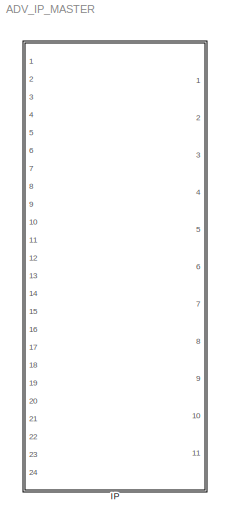
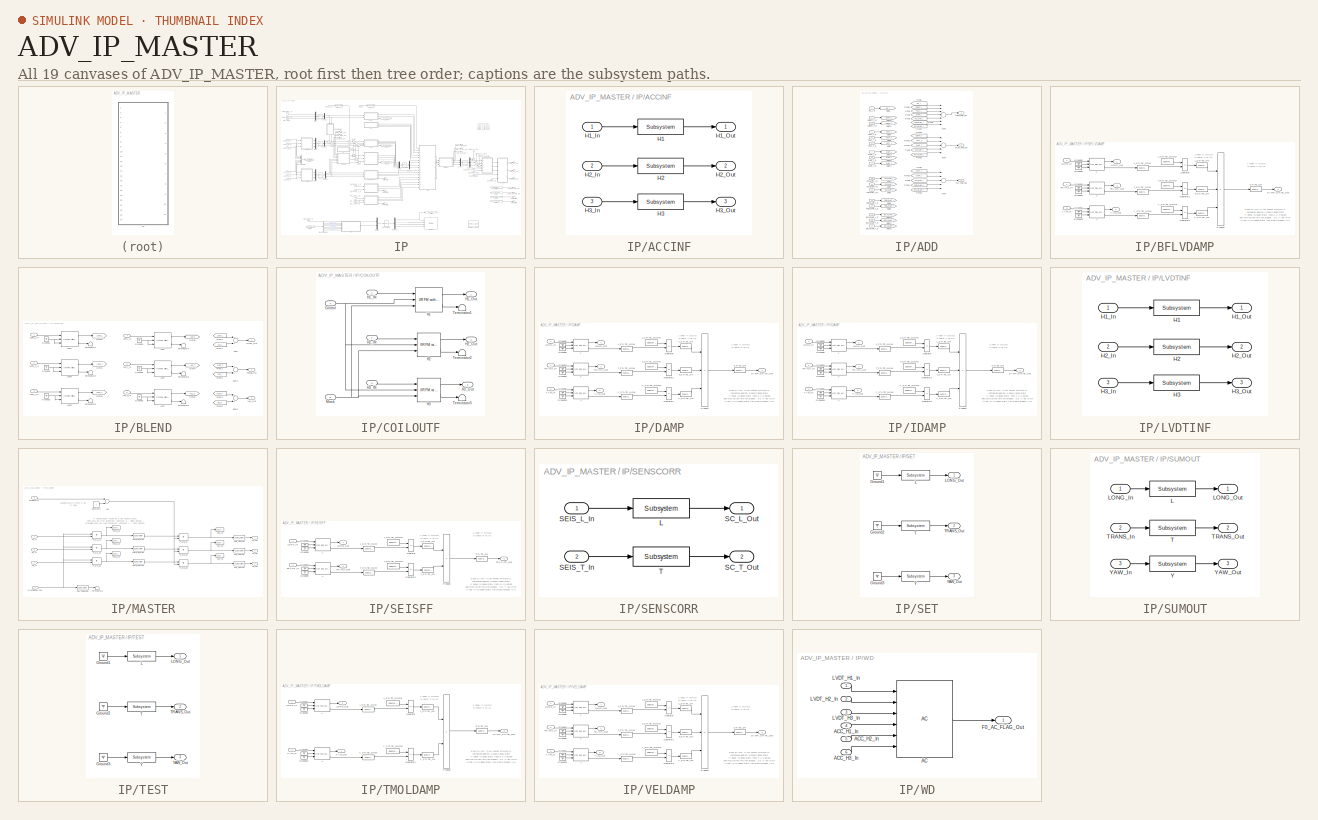
[diagram: thumbnail index - all 19 canvases of the model, root first then tree order]
MODEL ADV_IP_MASTER
KIND library
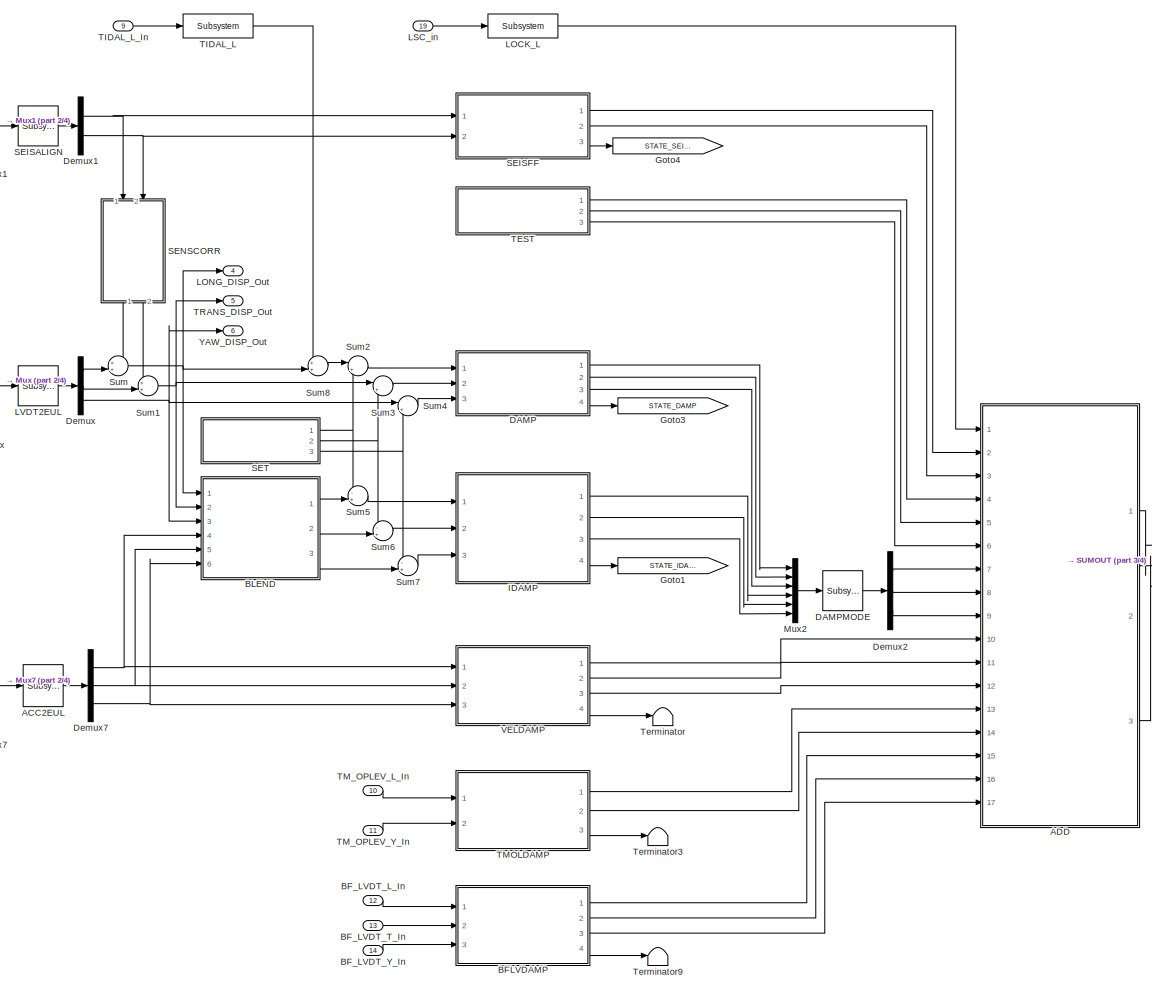
[diagram: IP - part 1/4, center side, full height]
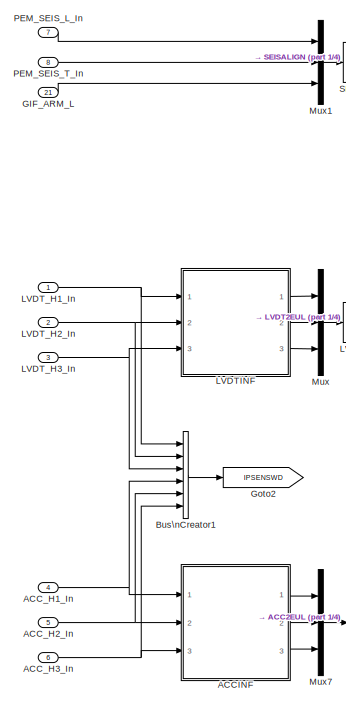
[diagram: IP - part 2/4, middle left region]
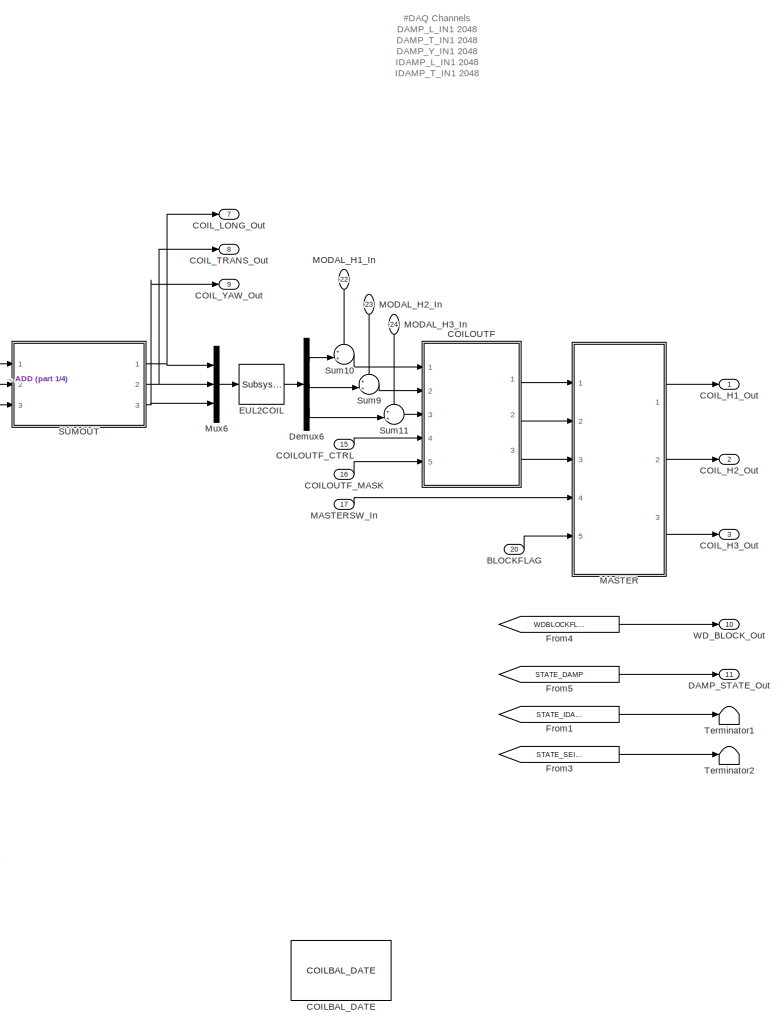
[diagram: IP - part 3/4, right side, full height]
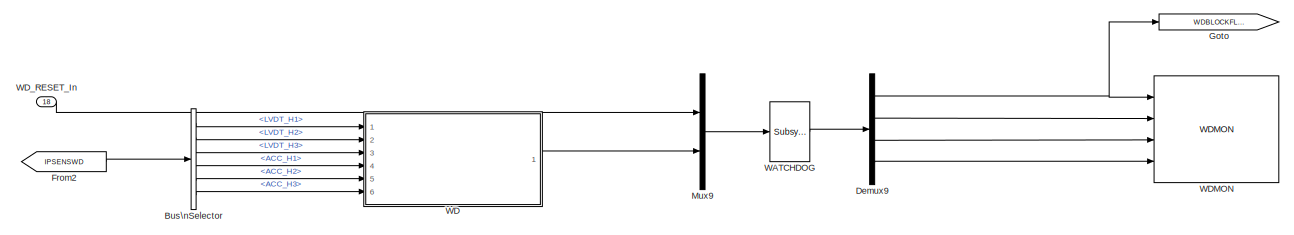
[diagram: IP - part 4/4, bottom center region]
BLOCK [SubSystem] IP
  Ports = [24, 11]
  RequestExecContextInheritance = off
  SID = 1
  Variant = off
BLOCK [Reference] IP/ACC2EUL  REF=cdsMuxMatrix/Subsystem
  AttributesFormatString = %<Tag>
  Description = ADL=SUS_INMATRIX.adl\nSCRIPT=generate_KisselButton.py 4 5 #CHANNEL# > #TARGET_DIR#/#FULL_PART_NAME#_KB.adl
  Ports = [1, 1]
  SID = 13
  SourceBlock = cdsMuxMatrix/Subsystem
  SourceType = SubSystem
  Tag = cdsMuxMatrix
BLOCK [SubSystem] IP/ACCINF
  Ports = [3, 3]
  RequestExecContextInheritance = off
  SID = 14
  Variant = off
BLOCK [Reference] IP/ACCINF/H1  REF=cdsFilt/Subsystem
  AttributesFormatString = %<Tag>
  Description = Purpose:                                                                                                                                                                                                                                  \nStandard CDS IIR filter module.                                                                                                                                     ...<+1302ch>  <repeated x19 — deduplicated; at blocks: H1, H2, H3, LOCK_L, L, T, Y, TIDAL_L>
  Ports = [1, 1]
  SID = 18
  SourceBlock = cdsFilt/Subsystem
  SourceType = SubSystem
  Tag = cdsFilt
BLOCK [Inport] IP/ACCINF/H1_In
  IconDisplay = Port number
  SID = 15
BLOCK [Outport] IP/ACCINF/H1_Out
  IconDisplay = Port number
  SID = 21
BLOCK [Reference] IP/ACCINF/H2  REF=cdsFilt/Subsystem
  AttributesFormatString = %<Tag>
  Ports = [1, 1]
  SID = 19
  SourceBlock = cdsFilt/Subsystem
  SourceType = SubSystem
  Tag = cdsFilt
BLOCK [Inport] IP/ACCINF/H2_In
  IconDisplay = Port number
  Port = 2
  SID = 16
BLOCK [Outport] IP/ACCINF/H2_Out
  IconDisplay = Port number
  Port = 2
  SID = 22
BLOCK [Reference] IP/ACCINF/H3  REF=cdsFilt/Subsystem
  AttributesFormatString = %<Tag>
  Ports = [1, 1]
  SID = 20
  SourceBlock = cdsFilt/Subsystem
  SourceType = SubSystem
  Tag = cdsFilt
BLOCK [Inport] IP/ACCINF/H3_In
  IconDisplay = Port number
  Port = 3
  SID = 17
BLOCK [Outport] IP/ACCINF/H3_Out
  IconDisplay = Port number
  Port = 3
  SID = 23
BLOCK [Inport] IP/ACC_H1_In
  IconDisplay = Port number
  Port = 4
  SID = 5
BLOCK [Inport] IP/ACC_H2_In
  IconDisplay = Port number
  Port = 5
  SID = 6
BLOCK [Inport] IP/ACC_H3_In
  IconDisplay = Port number
  Port = 6
  SID = 7
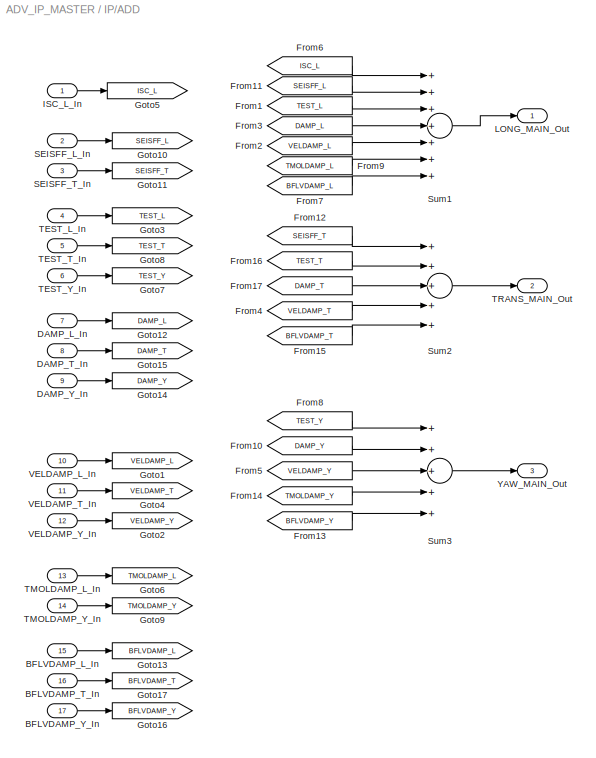
BLOCK [SubSystem] IP/ADD
  Ports = [17, 3]
  RequestExecContextInheritance = off
  SID = 24
  Variant = off
BLOCK [Inport] IP/ADD/BFLVDAMP_L_In
  IconDisplay = Port number
  Port = 15
  SID = 556
BLOCK [Inport] IP/ADD/BFLVDAMP_T_In
  IconDisplay = Port number
  Port = 16
  SID = 557
BLOCK [Inport] IP/ADD/BFLVDAMP_Y_In
  IconDisplay = Port number
  Port = 17
  SID = 558
BLOCK [Inport] IP/ADD/DAMP_L_In
  IconDisplay = Port number
  Port = 7
  SID = 28
BLOCK [Inport] IP/ADD/DAMP_T_In
  IconDisplay = Port number
  Port = 8
  SID = 29
BLOCK [Inport] IP/ADD/DAMP_Y_In
  IconDisplay = Port number
  Port = 9
  SID = 30
BLOCK [From] IP/ADD/From1
  CloseFcn = tagdialog Close
  GotoTag = TEST_L
  SID = 32
BLOCK [From] IP/ADD/From10
  CloseFcn = tagdialog Close
  GotoTag = DAMP_Y
  SID = 33
BLOCK [From] IP/ADD/From11
  CloseFcn = tagdialog Close
  GotoTag = SEISFF_L
  SID = 424
BLOCK [From] IP/ADD/From12
  CloseFcn = tagdialog Close
  GotoTag = SEISFF_T
  SID = 425
BLOCK [From] IP/ADD/From13
  CloseFcn = tagdialog Close
  GotoTag = BFLVDAMP_Y
  SID = 564
BLOCK [From] IP/ADD/From14
  CloseFcn = tagdialog Close
  GotoTag = TMOLDAMP_Y
  SID = 565
BLOCK [From] IP/ADD/From15
  CloseFcn = tagdialog Close
  GotoTag = BFLVDAMP_T
  SID = 566
BLOCK [From] IP/ADD/From16
  CloseFcn = tagdialog Close
  GotoTag = TEST_T
  SID = 34
BLOCK [From] IP/ADD/From17
  CloseFcn = tagdialog Close
  GotoTag = DAMP_T
  SID = 35
BLOCK [From] IP/ADD/From2
  CloseFcn = tagdialog Close
  GotoTag = VELDAMP_L
  SID = 309
BLOCK [From] IP/ADD/From3
  CloseFcn = tagdialog Close
  GotoTag = DAMP_L
  SID = 36
BLOCK [From] IP/ADD/From4
  CloseFcn = tagdialog Close
  GotoTag = VELDAMP_T
  SID = 310
BLOCK [From] IP/ADD/From5
  CloseFcn = tagdialog Close
  GotoTag = VELDAMP_Y
  SID = 311
BLOCK [From] IP/ADD/From6
  CloseFcn = tagdialog Close
  GotoTag = ISC_L
  SID = 462
BLOCK [From] IP/ADD/From7
  CloseFcn = tagdialog Close
  GotoTag = BFLVDAMP_L
  SID = 562
BLOCK [From] IP/ADD/From8
  CloseFcn = tagdialog Close
  GotoTag = TEST_Y
  SID = 37
BLOCK [From] IP/ADD/From9
  CloseFcn = tagdialog Close
  GotoTag = TMOLDAMP_L
  SID = 563
BLOCK [Goto] IP/ADD/Goto1
  GotoTag = VELDAMP_L
  SID = 306
BLOCK [Goto] IP/ADD/Goto10
  GotoTag = SEISFF_L
  SID = 422
BLOCK [Goto] IP/ADD/Goto11
  GotoTag = SEISFF_T
  SID = 423
BLOCK [Goto] IP/ADD/Goto12
  GotoTag = DAMP_L
  SID = 38
BLOCK [Goto] IP/ADD/Goto13
  GotoTag = BFLVDAMP_L
  SID = 559
BLOCK [Goto] IP/ADD/Goto14
  GotoTag = DAMP_Y
  SID = 39
BLOCK [Goto] IP/ADD/Goto15
  GotoTag = DAMP_T
  SID = 40
BLOCK [Goto] IP/ADD/Goto16
  GotoTag = BFLVDAMP_Y
  SID = 560
BLOCK [Goto] IP/ADD/Goto17
  GotoTag = BFLVDAMP_T
  SID = 561
BLOCK [Goto] IP/ADD/Goto2
  GotoTag = VELDAMP_Y
  SID = 307
BLOCK [Goto] IP/ADD/Goto3
  GotoTag = TEST_L
  SID = 41
BLOCK [Goto] IP/ADD/Goto4
  GotoTag = VELDAMP_T
  SID = 308
BLOCK [Goto] IP/ADD/Goto5
  GotoTag = ISC_L
  SID = 461
BLOCK [Goto] IP/ADD/Goto6
  GotoTag = TMOLDAMP_L
  SID = 554
BLOCK [Goto] IP/ADD/Goto7
  GotoTag = TEST_Y
  SID = 42
BLOCK [Goto] IP/ADD/Goto8
  GotoTag = TEST_T
  SID = 43
BLOCK [Goto] IP/ADD/Goto9
  GotoTag = TMOLDAMP_Y
  SID = 555
BLOCK [Inport] IP/ADD/ISC_L_In
  IconDisplay = Port number
  SID = 460
BLOCK [Outport] IP/ADD/LONG_MAIN_Out
  IconDisplay = Port number
  SID = 47
BLOCK [Inport] IP/ADD/SEISFF_L_In
  IconDisplay = Port number
  Port = 2
  SID = 420
BLOCK [Inport] IP/ADD/SEISFF_T_In
  IconDisplay = Port number
  Port = 3
  SID = 421
BLOCK [Sum] IP/ADD/Sum1
  InputSameDT = off
  Inputs = +++++++
  OutDataTypeStr = Inherit: Inherit via internal rule
  Ports = [7, 1]
  SID = 44
  SaturateOnIntegerOverflow = off
BLOCK [Sum] IP/ADD/Sum2
  InputSameDT = off
  Inputs = +++++
  OutDataTypeStr = Inherit: Inherit via internal rule
  Ports = [5, 1]
  SID = 45
  SaturateOnIntegerOverflow = off
BLOCK [Sum] IP/ADD/Sum3
  InputSameDT = off
  Inputs = +++++
  OutDataTypeStr = Inherit: Inherit via internal rule
  Ports = [5, 1]
  SID = 46
  SaturateOnIntegerOverflow = off
BLOCK [Inport] IP/ADD/TEST_L_In
  IconDisplay = Port number
  Port = 4
  SID = 25
BLOCK [Inport] IP/ADD/TEST_T_In
  IconDisplay = Port number
  Port = 5
  SID = 26
BLOCK [Inport] IP/ADD/TEST_Y_In
  IconDisplay = Port number
  Port = 6
  SID = 27
BLOCK [Inport] IP/ADD/TMOLDAMP_L_In
  IconDisplay = Port number
  Port = 13
  SID = 552
BLOCK [Inport] IP/ADD/TMOLDAMP_Y_In
  IconDisplay = Port number
  Port = 14
  SID = 553
BLOCK [Outport] IP/ADD/TRANS_MAIN_Out
  IconDisplay = Port number
  Port = 2
  SID = 48
BLOCK [Inport] IP/ADD/VELDAMP_L_In
  IconDisplay = Port number
  Port = 10
  SID = 303
BLOCK [Inport] IP/ADD/VELDAMP_T_In
  IconDisplay = Port number
  Port = 11
  SID = 304
BLOCK [Inport] IP/ADD/VELDAMP_Y_In
  IconDisplay = Port number
  Port = 12
  SID = 305
BLOCK [Outport] IP/ADD/YAW_MAIN_Out
  IconDisplay = Port number
  Port = 3
  SID = 49
BLOCK [SubSystem] IP/BFLVDAMP
  Ports = [3, 4]
  RequestExecContextInheritance = off
  SID = 509
  Variant = off
BLOCK [Outport] IP/BFLVDAMP/DAMP_STATE_Out
  IconDisplay = Port number
  Port = 4
  SID = 539
BLOCK [Ground] IP/BFLVDAMP/Ground12
  SID = 513
BLOCK [Ground] IP/BFLVDAMP/Ground4
  SID = 514
BLOCK [Ground] IP/BFLVDAMP/Ground5
  SID = 515
BLOCK [Ground] IP/BFLVDAMP/Ground6
  SID = 516
BLOCK [Ground] IP/BFLVDAMP/Ground8
  SID = 517
BLOCK [Ground] IP/BFLVDAMP/Ground9
  SID = 518
BLOCK [Reference] IP/BFLVDAMP/L  REF=cdsFiltCtrl/IIR FM with control
  AttributesFormatString = %<Tag>
  Description = cdsFiltCntrl is the standard IIR filter module (exactly the same as cdsFilt) but with added control data output 'Ctrl'. Filter module digital signal output appears on the first output, which is called 'Val'. 'Ctrl' output has a bit pattern encoding the state of filter's on/off switches (FM1 through FM10). The bit values are:\n                                                                        ...<+4621ch>  <repeated x25 — deduplicated; at blocks: L, T, Y, ACCL, ACCT, ACCY, LVDTL, LVDTT, LVDTY, H1, H2, H3>
  Ports = [3, 2]
  SID = 519
  SourceBlock = cdsFiltCtrl/IIR FM with control
  SourceType = SubSystem
  Tag = cdsFiltCtrl
BLOCK [Inport] IP/BFLVDAMP/LONG_In
  IconDisplay = Port number
  SID = 510
BLOCK [Outport] IP/BFLVDAMP/LONG_Out
  IconDisplay = Port number
  SID = 536
BLOCK [Reference] IP/BFLVDAMP/L_STATE_GOOD  REF=cdsEpicsIn/Subsystem
  AttributesFormatString = %<Tag>
  Description = Purpose:                                                                              \nCreate an EPICS input channel connection to the FE realtime controls.                 \n                                                                                      \nOperation:                                                                            \nOutputs value from an EPICS ai record. Value is ...<+266ch>  <repeated x16 — deduplicated; at blocks: L_STATE_GOOD, T_STATE_GOOD, Y_STATE_GOOD>
  Ports = [0, 1]
  SID = 520
  SourceBlock = cdsEpicsIn/Subsystem
  SourceType = SubSystem
  Tag = cdsEpicsIn
BLOCK [Reference] IP/BFLVDAMP/L_STATE_NOW  REF=cdsEpicsOut/Subsystem
  AttributesFormatString = %<Tag>
  Description = Purpose:                                          \nOutput a FE signal to an EPICS channel.           \n                                                  \nOperation:                                        \nTakes input value and passes it to EPICS record.  \n                                                  \nUsage:                                            \nName the part with the desired EPICS...<+14ch>  <repeated x45 — deduplicated; at blocks: L_STATE_NOW, L_STATE_OK, STATE_OK, T_STATE_NOW, T_STATE_OK, V_STATE_OK, Y_STATE_NOW, OUT_H1MON, OUT_H2MON, OUT_H3MON, PWD_H1MON, PWD_H2MON, PWD_H3MON, SWITCHMON>
  Ports = [1, 1]
  SID = 521
  SourceBlock = cdsEpicsOut/Subsystem
  SourceType = SubSystem
  Tag = cdsEpicsOutput
BLOCK [Reference] IP/BFLVDAMP/L_STATE_OK  REF=cdsEpicsOut/Subsystem
  AttributesFormatString = %<Tag>
  Ports = [1, 1]
  SID = 522
  SourceBlock = cdsEpicsOut/Subsystem
  SourceType = SubSystem
  Tag = cdsEpicsOutput
BLOCK [RelationalOperator] IP/BFLVDAMP/Operator
  InputSameDT = off
  Operator = ==
  OutDataTypeStr = boolean
  Ports = [2, 1]
  SID = 523
BLOCK [RelationalOperator] IP/BFLVDAMP/Operator1
  InputSameDT = off
  Operator = ==
  OutDataTypeStr = boolean
  Ports = [2, 1]
  SID = 524
BLOCK [RelationalOperator] IP/BFLVDAMP/Operator2
  InputSameDT = off
  Operator = ==
  OutDataTypeStr = boolean
  Ports = [2, 1]
  SID = 525
BLOCK [Product] IP/BFLVDAMP/Product
  InputSameDT = off
  Inputs = 3
  OutDataTypeStr = Inherit: Inherit via internal rule
  Ports = [3, 1]
  SID = 526
  SaturateOnIntegerOverflow = off
BLOCK [Reference] IP/BFLVDAMP/STATE_OK  REF=cdsEpicsOut/Subsystem
  AttributesFormatString = %<Tag>
  Ports = [1, 1]
  SID = 527
  SourceBlock = cdsEpicsOut/Subsystem
  SourceType = SubSystem
  Tag = cdsEpicsOutput
BLOCK [Reference] IP/BFLVDAMP/T  REF=cdsFiltCtrl/IIR FM with control
  AttributesFormatString = %<Tag>
  Ports = [3, 2]
  SID = 528
  SourceBlock = cdsFiltCtrl/IIR FM with control
  SourceType = SubSystem
  Tag = cdsFiltCtrl
BLOCK [Inport] IP/BFLVDAMP/TRANS_In
  IconDisplay = Port number
  Port = 2
  SID = 511
BLOCK [Outport] IP/BFLVDAMP/TRANS_Out
  IconDisplay = Port number
  Port = 2
  SID = 537
BLOCK [Reference] IP/BFLVDAMP/T_STATE_GOOD  REF=cdsEpicsIn/Subsystem
  AttributesFormatString = %<Tag>
  Ports = [0, 1]
  SID = 529
  SourceBlock = cdsEpicsIn/Subsystem
  SourceType = SubSystem
  Tag = cdsEpicsIn
BLOCK [Reference] IP/BFLVDAMP/T_STATE_NOW  REF=cdsEpicsOut/Subsystem
  AttributesFormatString = %<Tag>
  Ports = [1, 1]
  SID = 530
  SourceBlock = cdsEpicsOut/Subsystem
  SourceType = SubSystem
  Tag = cdsEpicsOutput
BLOCK [Reference] IP/BFLVDAMP/T_STATE_OK  REF=cdsEpicsOut/Subsystem
  AttributesFormatString = %<Tag>
  Ports = [1, 1]
  SID = 531
  SourceBlock = cdsEpicsOut/Subsystem
  SourceType = SubSystem
  Tag = cdsEpicsOutput
BLOCK [Reference] IP/BFLVDAMP/V_STATE_OK  REF=cdsEpicsOut/Subsystem
  AttributesFormatString = %<Tag>
  Ports = [1, 1]
  SID = 532
  SourceBlock = cdsEpicsOut/Subsystem
  SourceType = SubSystem
  Tag = cdsEpicsOutput
BLOCK [Reference] IP/BFLVDAMP/Y  REF=cdsFiltCtrl/IIR FM with control
  AttributesFormatString = %<Tag>
  Ports = [3, 2]
  SID = 533
  SourceBlock = cdsFiltCtrl/IIR FM with control
  SourceType = SubSystem
  Tag = cdsFiltCtrl
BLOCK [Inport] IP/BFLVDAMP/YAW_In
  IconDisplay = Port number
  Port = 3
  SID = 512
BLOCK [Outport] IP/BFLVDAMP/YAW_Out
  IconDisplay = Port number
  Port = 3
  SID = 538
BLOCK [Reference] IP/BFLVDAMP/Y_STATE_GOOD  REF=cdsEpicsIn/Subsystem
  AttributesFormatString = %<Tag>
  Ports = [0, 1]
  SID = 534
  SourceBlock = cdsEpicsIn/Subsystem
  SourceType = SubSystem
  Tag = cdsEpicsIn
BLOCK [Reference] IP/BFLVDAMP/Y_STATE_NOW  REF=cdsEpicsOut/Subsystem
  AttributesFormatString = %<Tag>
  Ports = [1, 1]
  SID = 535
  SourceBlock = cdsEpicsOut/Subsystem
  SourceType = SubSystem
  Tag = cdsEpicsOutput
BLOCK [Inport] IP/BF_LVDT_L_In
  IconDisplay = Port number
  Port = 12
  SID = 570
BLOCK [Inport] IP/BF_LVDT_T_In
  IconDisplay = Port number
  Port = 13
  SID = 571
BLOCK [Inport] IP/BF_LVDT_Y_In
  IconDisplay = Port number
  Port = 14
  SID = 572
BLOCK [SubSystem] IP/BLEND
  Ports = [6, 3]
  RequestExecContextInheritance = off
  SID = 50
  Variant = off
BLOCK [Reference] IP/BLEND/ACCL  REF=cdsFiltCtrl/IIR FM with control
  AttributesFormatString = %<Tag>
  Ports = [3, 2]
  SID = 57
  SourceBlock = cdsFiltCtrl/IIR FM with control
  SourceType = SubSystem
  Tag = cdsFiltCtrl
BLOCK [Reference] IP/BLEND/ACCT  REF=cdsFiltCtrl/IIR FM with control
  AttributesFormatString = %<Tag>
  Ports = [3, 2]
  SID = 58
  SourceBlock = cdsFiltCtrl/IIR FM with control
  SourceType = SubSystem
  Tag = cdsFiltCtrl
BLOCK [Reference] IP/BLEND/ACCY  REF=cdsFiltCtrl/IIR FM with control
  AttributesFormatString = %<Tag>
  Ports = [3, 2]
  SID = 59
  SourceBlock = cdsFiltCtrl/IIR FM with control
  SourceType = SubSystem
  Tag = cdsFiltCtrl
BLOCK [Inport] IP/BLEND/ACC_L_In
  IconDisplay = Port number
  Port = 4
  SID = 54
BLOCK [Inport] IP/BLEND/ACC_T_In
  IconDisplay = Port number
  Port = 5
  SID = 55
BLOCK [Inport] IP/BLEND/ACC_Y_IN
  IconDisplay = Port number
  Port = 6
  SID = 56
BLOCK [From] IP/BLEND/From1
  CloseFcn = tagdialog Close
  GotoTag = LVDT_T
  SID = 60
BLOCK [From] IP/BLEND/From2
  CloseFcn = tagdialog Close
  GotoTag = LVDT_Y
  SID = 61
BLOCK [From] IP/BLEND/From3
  CloseFcn = tagdialog Close
  GotoTag = LVDT_L
  SID = 62
BLOCK [From] IP/BLEND/From4
  CloseFcn = tagdialog Close
  GotoTag = ACC_L
  SID = 63
BLOCK [From] IP/BLEND/From5
  CloseFcn = tagdialog Close
  GotoTag = ACC_T
  SID = 64
BLOCK [From] IP/BLEND/From6
  CloseFcn = tagdialog Close
  GotoTag = ACC_Y
  SID = 65
BLOCK [Goto] IP/BLEND/Goto1
  GotoTag = LVDT_T
  SID = 66
BLOCK [Goto] IP/BLEND/Goto2
  GotoTag = LVDT_L
  SID = 67
BLOCK [Goto] IP/BLEND/Goto3
  GotoTag = LVDT_Y
  SID = 68
BLOCK [Goto] IP/BLEND/Goto4
  GotoTag = ACC_T
  SID = 69
BLOCK [Goto] IP/BLEND/Goto5
  GotoTag = ACC_L
  SID = 70
BLOCK [Goto] IP/BLEND/Goto6
  GotoTag = ACC_Y
  SID = 71
BLOCK [Ground] IP/BLEND/Ground1
  SID = 72
BLOCK [Ground] IP/BLEND/Ground2
  SID = 73
BLOCK [Ground] IP/BLEND/Ground3
  SID = 74
BLOCK [Ground] IP/BLEND/Ground4
  SID = 75
BLOCK [Ground] IP/BLEND/Ground5
  SID = 76
BLOCK [Ground] IP/BLEND/Ground6
  SID = 77
BLOCK [Outport] IP/BLEND/LONG_Out
  IconDisplay = Port number
  SID = 90
BLOCK [Reference] IP/BLEND/LVDTL  REF=cdsFiltCtrl/IIR FM with control
  AttributesFormatString = %<Tag>
  Ports = [3, 2]
  SID = 78
  SourceBlock = cdsFiltCtrl/IIR FM with control
  SourceType = SubSystem
  Tag = cdsFiltCtrl
BLOCK [Reference] IP/BLEND/LVDTT  REF=cdsFiltCtrl/IIR FM with control
  AttributesFormatString = %<Tag>
  Ports = [3, 2]
  SID = 79
  SourceBlock = cdsFiltCtrl/IIR FM with control
  SourceType = SubSystem
  Tag = cdsFiltCtrl
BLOCK [Reference] IP/BLEND/LVDTY  REF=cdsFiltCtrl/IIR FM with control
  AttributesFormatString = %<Tag>
  Ports = [3, 2]
  SID = 80
  SourceBlock = cdsFiltCtrl/IIR FM with control
  SourceType = SubSystem
  Tag = cdsFiltCtrl
BLOCK [Inport] IP/BLEND/LVDT_L_In
  IconDisplay = Port number
  SID = 51
BLOCK [Inport] IP/BLEND/LVDT_T_In
  IconDisplay = Port number
  Port = 2
  SID = 52
BLOCK [Inport] IP/BLEND/LVDT_Y_In
  IconDisplay = Port number
  Port = 3
  SID = 53
BLOCK [Sum] IP/BLEND/Sum
  InputSameDT = off
  OutDataTypeStr = Inherit: Inherit via internal rule
  Ports = [2, 1]
  SID = 81
  SaturateOnIntegerOverflow = off
BLOCK [Sum] IP/BLEND/Sum1
  InputSameDT = off
  OutDataTypeStr = Inherit: Inherit via internal rule
  Ports = [2, 1]
  SID = 82
  SaturateOnIntegerOverflow = off
BLOCK [Sum] IP/BLEND/Sum2
  InputSameDT = off
  OutDataTypeStr = Inherit: Inherit via internal rule
  Ports = [2, 1]
  SID = 83
  SaturateOnIntegerOverflow = off
BLOCK [Outport] IP/BLEND/TRANS_Out
  IconDisplay = Port number
  Port = 2
  SID = 91
BLOCK [Terminator] IP/BLEND/Terminator1
  SID = 84
BLOCK [Terminator] IP/BLEND/Terminator2
  SID = 85
BLOCK [Terminator] IP/BLEND/Terminator3
  SID = 86
BLOCK [Terminator] IP/BLEND/Terminator4
  SID = 87
BLOCK [Terminator] IP/BLEND/Terminator5
  SID = 88
BLOCK [Terminator] IP/BLEND/Terminator6
  SID = 89
BLOCK [Outport] IP/BLEND/YAW_Out
  IconDisplay = Port number
  Port = 3
  SID = 92
BLOCK [Inport] IP/BLOCKFLAG
  IconDisplay = Port number
  Port = 20
  SID = 316
BLOCK [BusCreator] IP/Bus\nCreator1
  DisplayOption = bar
  InheritFromInputs = on
  Inputs = 'LVDT_H1','LVDT_H2','LVDT_H3','ACC_H1','ACC_H2','ACC_H3'
  Ports = [6, 1]
  SID = 93
BLOCK [BusSelector] IP/Bus\nSelector
  OutputSignals = LVDT_H1,LVDT_H2,LVDT_H3,ACC_H1,ACC_H2,ACC_H3
  Ports = [1, 6]
  SID = 94
BLOCK [Reference] IP/COILBAL_DATE  REF=VIS_LIB/COILBAL_DATE
  Ports = []
  SID = 584
  SourceBlock = VIS_LIB/COILBAL_DATE
  SourceType = SubSystem
BLOCK [SubSystem] IP/COILOUTF
  Ports = [5, 3]
  RequestExecContextInheritance = off
  SID = 95
  Variant = off
BLOCK [Inport] IP/COILOUTF/Control
  IconDisplay = Port number
  Port = 4
  SID = 99
BLOCK [Reference] IP/COILOUTF/H1  REF=cdsFiltCtrl/IIR FM with control
  AttributesFormatString = %<Tag>
  Ports = [3, 2]
  SID = 104
  SourceBlock = cdsFiltCtrl/IIR FM with control
  SourceType = SubSystem
  Tag = cdsFiltCtrl
BLOCK [Inport] IP/COILOUTF/H1_IN
  IconDisplay = Port number
  SID = 96
BLOCK [Outport] IP/COILOUTF/H1_Out
  IconDisplay = Port number
  SID = 110
BLOCK [Reference] IP/COILOUTF/H2  REF=cdsFiltCtrl/IIR FM with control
  AttributesFormatString = %<Tag>
  Ports = [3, 2]
  SID = 105
  SourceBlock = cdsFiltCtrl/IIR FM with control
  SourceType = SubSystem
  Tag = cdsFiltCtrl
BLOCK [Inport] IP/COILOUTF/H2_IN
  IconDisplay = Port number
  Port = 2
  SID = 97
BLOCK [Outport] IP/COILOUTF/H2_Out
  IconDisplay = Port number
  Port = 2
  SID = 111
BLOCK [Reference] IP/COILOUTF/H3  REF=cdsFiltCtrl/IIR FM with control
  AttributesFormatString = %<Tag>
  Ports = [3, 2]
  SID = 106
  SourceBlock = cdsFiltCtrl/IIR FM with control
  SourceType = SubSystem
  Tag = cdsFiltCtrl
BLOCK [Inport] IP/COILOUTF/H3_IN
  IconDisplay = Port number
  Port = 3
  SID = 98
BLOCK [Outport] IP/COILOUTF/H3_Out
  IconDisplay = Port number
  Port = 3
  SID = 112
BLOCK [Inport] IP/COILOUTF/Mask
  IconDisplay = Port number
  Port = 5
  SID = 100
BLOCK [Terminator] IP/COILOUTF/Terminator1
  SID = 107
BLOCK [Terminator] IP/COILOUTF/Terminator2
  SID = 108
BLOCK [Terminator] IP/COILOUTF/Terminator3
  SID = 109
BLOCK [Inport] IP/COILOUTF_CTRL
  IconDisplay = Port number
  Port = 15
  SID = 9
BLOCK [Inport] IP/COILOUTF_MASK
  IconDisplay = Port number
  Port = 16
  SID = 10
BLOCK [Outport] IP/COIL_H1_Out
  IconDisplay = Port number
  SID = 250
BLOCK [Outport] IP/COIL_H2_Out
  IconDisplay = Port number
  Port = 2
  SID = 251
BLOCK [Outport] IP/COIL_H3_Out
  IconDisplay = Port number
  Port = 3
  SID = 252
BLOCK [Outport] IP/COIL_LONG_Out
  IconDisplay = Port number
  Port = 7
  SID = 259
BLOCK [Outport] IP/COIL_TRANS_Out
  IconDisplay = Port number
  Port = 8
  SID = 260
BLOCK [Outport] IP/COIL_YAW_Out
  IconDisplay = Port number
  Port = 9
  SID = 261
BLOCK [SubSystem] IP/DAMP
  Ports = [3, 4]
  RequestExecContextInheritance = off
  SID = 320
  Variant = off
BLOCK [Outport] IP/DAMP/DAMP_STATE_Out
  IconDisplay = Port number
  Port = 4
  SID = 350
BLOCK [Ground] IP/DAMP/Ground12
  SID = 324
BLOCK [Ground] IP/DAMP/Ground4
  SID = 325
BLOCK [Ground] IP/DAMP/Ground5
  SID = 326
BLOCK [Ground] IP/DAMP/Ground6
  SID = 327
BLOCK [Ground] IP/DAMP/Ground8
  SID = 328
BLOCK [Ground] IP/DAMP/Ground9
  SID = 329
BLOCK [Reference] IP/DAMP/L  REF=cdsFiltCtrl/IIR FM with control
  AttributesFormatString = %<Tag>
  Ports = [3, 2]
  SID = 330
  SourceBlock = cdsFiltCtrl/IIR FM with control
  SourceType = SubSystem
  Tag = cdsFiltCtrl
BLOCK [Inport] IP/DAMP/LONG_In
  IconDisplay = Port number
  SID = 321
BLOCK [Outport] IP/DAMP/LONG_Out
  IconDisplay = Port number
  SID = 347
BLOCK [Reference] IP/DAMP/L_STATE_GOOD  REF=cdsEpicsIn/Subsystem
  AttributesFormatString = %<Tag>
  Ports = [0, 1]
  SID = 331
  SourceBlock = cdsEpicsIn/Subsystem
  SourceType = SubSystem
  Tag = cdsEpicsIn
BLOCK [Reference] IP/DAMP/L_STATE_NOW  REF=cdsEpicsOut/Subsystem
  AttributesFormatString = %<Tag>
  Ports = [1, 1]
  SID = 332
  SourceBlock = cdsEpicsOut/Subsystem
  SourceType = SubSystem
  Tag = cdsEpicsOutput
BLOCK [Reference] IP/DAMP/L_STATE_OK  REF=cdsEpicsOut/Subsystem
  AttributesFormatString = %<Tag>
  Ports = [1, 1]
  SID = 333
  SourceBlock = cdsEpicsOut/Subsystem
  SourceType = SubSystem
  Tag = cdsEpicsOutput
BLOCK [RelationalOperator] IP/DAMP/Operator
  InputSameDT = off
  Operator = ==
  OutDataTypeStr = boolean
  Ports = [2, 1]
  SID = 334
BLOCK [RelationalOperator] IP/DAMP/Operator1
  InputSameDT = off
  Operator = ==
  OutDataTypeStr = boolean
  Ports = [2, 1]
  SID = 335
BLOCK [RelationalOperator] IP/DAMP/Operator2
  InputSameDT = off
  Operator = ==
  OutDataTypeStr = boolean
  Ports = [2, 1]
  SID = 336
BLOCK [Product] IP/DAMP/Product
  InputSameDT = off
  Inputs = 3
  OutDataTypeStr = Inherit: Inherit via internal rule
  Ports = [3, 1]
  SID = 337
  SaturateOnIntegerOverflow = off
BLOCK [Reference] IP/DAMP/STATE_OK  REF=cdsEpicsOut/Subsystem
  AttributesFormatString = %<Tag>
  Ports = [1, 1]
  SID = 338
  SourceBlock = cdsEpicsOut/Subsystem
  SourceType = SubSystem
  Tag = cdsEpicsOutput
BLOCK [Reference] IP/DAMP/T  REF=cdsFiltCtrl/IIR FM with control
  AttributesFormatString = %<Tag>
  Ports = [3, 2]
  SID = 339
  SourceBlock = cdsFiltCtrl/IIR FM with control
  SourceType = SubSystem
  Tag = cdsFiltCtrl
BLOCK [Inport] IP/DAMP/TRANS_In
  IconDisplay = Port number
  Port = 2
  SID = 322
BLOCK [Outport] IP/DAMP/TRANS_Out
  IconDisplay = Port number
  Port = 2
  SID = 348
BLOCK [Reference] IP/DAMP/T_STATE_GOOD  REF=cdsEpicsIn/Subsystem
  AttributesFormatString = %<Tag>
  Ports = [0, 1]
  SID = 340
  SourceBlock = cdsEpicsIn/Subsystem
  SourceType = SubSystem
  Tag = cdsEpicsIn
BLOCK [Reference] IP/DAMP/T_STATE_NOW  REF=cdsEpicsOut/Subsystem
  AttributesFormatString = %<Tag>
  Ports = [1, 1]
  SID = 341
  SourceBlock = cdsEpicsOut/Subsystem
  SourceType = SubSystem
  Tag = cdsEpicsOutput
BLOCK [Reference] IP/DAMP/T_STATE_OK  REF=cdsEpicsOut/Subsystem
  AttributesFormatString = %<Tag>
  Ports = [1, 1]
  SID = 342
  SourceBlock = cdsEpicsOut/Subsystem
  SourceType = SubSystem
  Tag = cdsEpicsOutput
BLOCK [Reference] IP/DAMP/V_STATE_OK  REF=cdsEpicsOut/Subsystem
  AttributesFormatString = %<Tag>
  Ports = [1, 1]
  SID = 343
  SourceBlock = cdsEpicsOut/Subsystem
  SourceType = SubSystem
  Tag = cdsEpicsOutput
BLOCK [Reference] IP/DAMP/Y  REF=cdsFiltCtrl/IIR FM with control
  AttributesFormatString = %<Tag>
  Ports = [3, 2]
  SID = 344
  SourceBlock = cdsFiltCtrl/IIR FM with control
  SourceType = SubSystem
  Tag = cdsFiltCtrl
BLOCK [Inport] IP/DAMP/YAW_In
  IconDisplay = Port number
  Port = 3
  SID = 323
BLOCK [Outport] IP/DAMP/YAW_Out
  IconDisplay = Port number
  Port = 3
  SID = 349
BLOCK [Reference] IP/DAMP/Y_STATE_GOOD  REF=cdsEpicsIn/Subsystem
  AttributesFormatString = %<Tag>
  Ports = [0, 1]
  SID = 345
  SourceBlock = cdsEpicsIn/Subsystem
  SourceType = SubSystem
  Tag = cdsEpicsIn
BLOCK [Reference] IP/DAMP/Y_STATE_NOW  REF=cdsEpicsOut/Subsystem
  AttributesFormatString = %<Tag>
  Ports = [1, 1]
  SID = 346
  SourceBlock = cdsEpicsOut/Subsystem
  SourceType = SubSystem
  Tag = cdsEpicsOutput
BLOCK [Reference] IP/DAMPMODE  REF=cdsRampMuxMatrix/Subsystem
  AttributesFormatString = %<Tag>
  Ports = [1, 1]
  SID = 457
  SourceBlock = cdsRampMuxMatrix/Subsystem
  SourceType = SubSystem
  Tag = cdsRampMuxMatrix
BLOCK [Outport] IP/DAMP_STATE_Out
  IconDisplay = Port number
  Port = 11
  SID = 254
BLOCK [Demux] IP/Demux
  DisplayOption = bar
  Outputs = 3
  Ports = [1, 3]
  SID = 148
BLOCK [Demux] IP/Demux1
  DisplayOption = bar
  Outputs = 2
  Ports = [1, 2]
  SID = 440
BLOCK [Demux] IP/Demux2
  DisplayOption = bar
  Outputs = 3
  Ports = [1, 3]
  SID = 458
BLOCK [Demux] IP/Demux6
  DisplayOption = bar
  Outputs = 3
  Ports = [1, 3]
  SID = 149
BLOCK [Demux] IP/Demux7
  DisplayOption = bar
  Outputs = 3
  Ports = [1, 3]
  SID = 150
BLOCK [Demux] IP/Demux9
  DisplayOption = bar
  Ports = [1, 4]
  SID = 151
BLOCK [Reference] IP/EUL2COIL  REF=cdsMuxMatrix/Subsystem
  AttributesFormatString = %<Tag>
  Description = ADL=SUS_INMATRIX.adl\nSCRIPT=generate_KisselButton.py 4 5 #CHANNEL# > #TARGET_DIR#/#FULL_PART_NAME#_KB.adl
  Ports = [1, 1]
  SID = 152
  SourceBlock = cdsMuxMatrix/Subsystem
  SourceType = SubSystem
  Tag = cdsMuxMatrix
BLOCK [From] IP/From1
  CloseFcn = tagdialog Close
  GotoTag = STATE_IDAMP
  SID = 365
BLOCK [From] IP/From2
  CloseFcn = tagdialog Close
  GotoTag = IPSENSWD
  SID = 154
BLOCK [From] IP/From3
  CloseFcn = tagdialog Close
  GotoTag = STATE_SEISFF
  SID = 426
BLOCK [From] IP/From4
  CloseFcn = tagdialog Close
  GotoTag = WDBLOCKFLAG
  SID = 155
BLOCK [From] IP/From5
  CloseFcn = tagdialog Close
  GotoTag = STATE_DAMP
  SID = 156
BLOCK [Inport] IP/GIF_ARM_L
  IconDisplay = Port number
  Port = 21
  SID = 573
BLOCK [Goto] IP/Goto
  GotoTag = WDBLOCKFLAG
  SID = 176
BLOCK [Goto] IP/Goto1
  GotoTag = STATE_IDAMP
  SID = 364
BLOCK [Goto] IP/Goto2
  GotoTag = IPSENSWD
  SID = 177
BLOCK [Goto] IP/Goto3
  GotoTag = STATE_DAMP
  SID = 178
BLOCK [Goto] IP/Goto4
  GotoTag = STATE_SEISFF
  SID = 419
BLOCK [SubSystem] IP/IDAMP
  Ports = [3, 4]
  RequestExecContextInheritance = off
  SID = 113
  Variant = off
BLOCK [Outport] IP/IDAMP/DAMP_STATE_Out
  IconDisplay = Port number
  Port = 4
  SID = 143
BLOCK [Ground] IP/IDAMP/Ground12
  SID = 117
BLOCK [Ground] IP/IDAMP/Ground4
  SID = 118
BLOCK [Ground] IP/IDAMP/Ground5
  SID = 119
BLOCK [Ground] IP/IDAMP/Ground6
  SID = 120
BLOCK [Ground] IP/IDAMP/Ground8
  SID = 121
BLOCK [Ground] IP/IDAMP/Ground9
  SID = 122
BLOCK [Reference] IP/IDAMP/L  REF=cdsFiltCtrl/IIR FM with control
  AttributesFormatString = %<Tag>
  Ports = [3, 2]
  SID = 123
  SourceBlock = cdsFiltCtrl/IIR FM with control
  SourceType = SubSystem
  Tag = cdsFiltCtrl
BLOCK [Inport] IP/IDAMP/LONG_In
  IconDisplay = Port number
  SID = 114
BLOCK [Outport] IP/IDAMP/LONG_Out
  IconDisplay = Port number
  SID = 140
BLOCK [Reference] IP/IDAMP/L_STATE_GOOD  REF=cdsEpicsIn/Subsystem
  AttributesFormatString = %<Tag>
  Ports = [0, 1]
  SID = 124
  SourceBlock = cdsEpicsIn/Subsystem
  SourceType = SubSystem
  Tag = cdsEpicsIn
BLOCK [Reference] IP/IDAMP/L_STATE_NOW  REF=cdsEpicsOut/Subsystem
  AttributesFormatString = %<Tag>
  Ports = [1, 1]
  SID = 125
  SourceBlock = cdsEpicsOut/Subsystem
  SourceType = SubSystem
  Tag = cdsEpicsOutput
BLOCK [Reference] IP/IDAMP/L_STATE_OK  REF=cdsEpicsOut/Subsystem
  AttributesFormatString = %<Tag>
  Ports = [1, 1]
  SID = 126
  SourceBlock = cdsEpicsOut/Subsystem
  SourceType = SubSystem
  Tag = cdsEpicsOutput
BLOCK [RelationalOperator] IP/IDAMP/Operator
  InputSameDT = off
  Operator = ==
  OutDataTypeStr = boolean
  Ports = [2, 1]
  SID = 127
BLOCK [RelationalOperator] IP/IDAMP/Operator1
  InputSameDT = off
  Operator = ==
  OutDataTypeStr = boolean
  Ports = [2, 1]
  SID = 128
BLOCK [RelationalOperator] IP/IDAMP/Operator2
  InputSameDT = off
  Operator = ==
  OutDataTypeStr = boolean
  Ports = [2, 1]
  SID = 129
BLOCK [Product] IP/IDAMP/Product
  InputSameDT = off
  Inputs = 3
  OutDataTypeStr = Inherit: Inherit via internal rule
  Ports = [3, 1]
  SID = 130
  SaturateOnIntegerOverflow = off
BLOCK [Reference] IP/IDAMP/STATE_OK  REF=cdsEpicsOut/Subsystem
  AttributesFormatString = %<Tag>
  Ports = [1, 1]
  SID = 131
  SourceBlock = cdsEpicsOut/Subsystem
  SourceType = SubSystem
  Tag = cdsEpicsOutput
BLOCK [Reference] IP/IDAMP/T  REF=cdsFiltCtrl/IIR FM with control
  AttributesFormatString = %<Tag>
  Ports = [3, 2]
  SID = 132
  SourceBlock = cdsFiltCtrl/IIR FM with control
  SourceType = SubSystem
  Tag = cdsFiltCtrl
BLOCK [Inport] IP/IDAMP/TRANS_In
  IconDisplay = Port number
  Port = 2
  SID = 115
BLOCK [Outport] IP/IDAMP/TRANS_Out
  IconDisplay = Port number
  Port = 2
  SID = 141
BLOCK [Reference] IP/IDAMP/T_STATE_GOOD  REF=cdsEpicsIn/Subsystem
  AttributesFormatString = %<Tag>
  Ports = [0, 1]
  SID = 133
  SourceBlock = cdsEpicsIn/Subsystem
  SourceType = SubSystem
  Tag = cdsEpicsIn
BLOCK [Reference] IP/IDAMP/T_STATE_NOW  REF=cdsEpicsOut/Subsystem
  AttributesFormatString = %<Tag>
  Ports = [1, 1]
  SID = 134
  SourceBlock = cdsEpicsOut/Subsystem
  SourceType = SubSystem
  Tag = cdsEpicsOutput
BLOCK [Reference] IP/IDAMP/T_STATE_OK  REF=cdsEpicsOut/Subsystem
  AttributesFormatString = %<Tag>
  Ports = [1, 1]
  SID = 135
  SourceBlock = cdsEpicsOut/Subsystem
  SourceType = SubSystem
  Tag = cdsEpicsOutput
BLOCK [Reference] IP/IDAMP/V_STATE_OK  REF=cdsEpicsOut/Subsystem
  AttributesFormatString = %<Tag>
  Ports = [1, 1]
  SID = 136
  SourceBlock = cdsEpicsOut/Subsystem
  SourceType = SubSystem
  Tag = cdsEpicsOutput
BLOCK [Reference] IP/IDAMP/Y  REF=cdsFiltCtrl/IIR FM with control
  AttributesFormatString = %<Tag>
  Ports = [3, 2]
  SID = 137
  SourceBlock = cdsFiltCtrl/IIR FM with control
  SourceType = SubSystem
  Tag = cdsFiltCtrl
BLOCK [Inport] IP/IDAMP/YAW_In
  IconDisplay = Port number
  Port = 3
  SID = 116
BLOCK [Outport] IP/IDAMP/YAW_Out
  IconDisplay = Port number
  Port = 3
  SID = 142
BLOCK [Reference] IP/IDAMP/Y_STATE_GOOD  REF=cdsEpicsIn/Subsystem
  AttributesFormatString = %<Tag>
  Ports = [0, 1]
  SID = 138
  SourceBlock = cdsEpicsIn/Subsystem
  SourceType = SubSystem
  Tag = cdsEpicsIn
BLOCK [Reference] IP/IDAMP/Y_STATE_NOW  REF=cdsEpicsOut/Subsystem
  AttributesFormatString = %<Tag>
  Ports = [1, 1]
  SID = 139
  SourceBlock = cdsEpicsOut/Subsystem
  SourceType = SubSystem
  Tag = cdsEpicsOutput
BLOCK [Reference] IP/LOCK_L  REF=cdsFilt/Subsystem
  AttributesFormatString = %<Tag>
  Ports = [1, 1]
  SID = 315
  SourceBlock = cdsFilt/Subsystem
  SourceType = SubSystem
  Tag = cdsFilt
BLOCK [Outport] IP/LONG_DISP_Out
  IconDisplay = Port number
  Port = 4
  SID = 256
BLOCK [Inport] IP/LSC_in
  IconDisplay = Port number
  Port = 19
  SID = 313
BLOCK [Reference] IP/LVDT2EUL  REF=cdsMuxMatrix/Subsystem
  AttributesFormatString = %<Tag>
  Description = ADL=SUS_INMATRIX.adl\nSCRIPT=generate_KisselButton.py 4 5 #CHANNEL# > #TARGET_DIR#/#FULL_PART_NAME#_KB.adl
  Ports = [1, 1]
  SID = 179
  SourceBlock = cdsMuxMatrix/Subsystem
  SourceType = SubSystem
  Tag = cdsMuxMatrix
BLOCK [SubSystem] IP/LVDTINF
  Ports = [3, 3]
  RequestExecContextInheritance = off
  SID = 180
  Variant = off
BLOCK [Reference] IP/LVDTINF/H1  REF=cdsFilt/Subsystem
  AttributesFormatString = %<Tag>
  Ports = [1, 1]
  SID = 184
  SourceBlock = cdsFilt/Subsystem
  SourceType = SubSystem
  Tag = cdsFilt
BLOCK [Inport] IP/LVDTINF/H1_In
  IconDisplay = Port number
  SID = 181
BLOCK [Outport] IP/LVDTINF/H1_Out
  IconDisplay = Port number
  SID = 187
BLOCK [Reference] IP/LVDTINF/H2  REF=cdsFilt/Subsystem
  AttributesFormatString = %<Tag>
  Ports = [1, 1]
  SID = 185
  SourceBlock = cdsFilt/Subsystem
  SourceType = SubSystem
  Tag = cdsFilt
BLOCK [Inport] IP/LVDTINF/H2_In
  IconDisplay = Port number
  Port = 2
  SID = 182
BLOCK [Outport] IP/LVDTINF/H2_Out
  IconDisplay = Port number
  Port = 2
  SID = 188
BLOCK [Reference] IP/LVDTINF/H3  REF=cdsFilt/Subsystem
  AttributesFormatString = %<Tag>
  Ports = [1, 1]
  SID = 186
  SourceBlock = cdsFilt/Subsystem
  SourceType = SubSystem
  Tag = cdsFilt
BLOCK [Inport] IP/LVDTINF/H3_In
  IconDisplay = Port number
  Port = 3
  SID = 183
BLOCK [Outport] IP/LVDTINF/H3_Out
  IconDisplay = Port number
  Port = 3
  SID = 189
BLOCK [Inport] IP/LVDT_H1_In
  IconDisplay = Port number
  SID = 2
BLOCK [Inport] IP/LVDT_H2_In
  IconDisplay = Port number
  Port = 2
  SID = 3
BLOCK [Inport] IP/LVDT_H3_In
  IconDisplay = Port number
  Port = 3
  SID = 4
BLOCK [SubSystem] IP/MASTER
  Ports = [5, 3]
  RequestExecContextInheritance = off
  SID = 190
  Variant = off
BLOCK [Sum] IP/MASTER/Add
  InputSameDT = off
  Inputs = -+
  OutDataTypeStr = Inherit: Inherit via internal rule
  Ports = [2, 1]
  SID = 317
  SaturateOnIntegerOverflow = off
BLOCK [Inport] IP/MASTER/BLOCKFLAG
  IconDisplay = Port number
  Port = 5
  SID = 195
BLOCK [Constant] IP/MASTER/Constant1
  SID = 198
BLOCK [Inport] IP/MASTER/H1_In
  IconDisplay = Port number
  SID = 191
BLOCK [Outport] IP/MASTER/H1_Out
  IconDisplay = Port number
  SID = 219
BLOCK [Inport] IP/MASTER/H2_In
  IconDisplay = Port number
  Port = 2
  SID = 192
BLOCK [Outport] IP/MASTER/H2_Out
  IconDisplay = Port number
  Port = 2
  SID = 220
BLOCK [Inport] IP/MASTER/H3_In
  IconDisplay = Port number
  Port = 3
  SID = 193
BLOCK [Outport] IP/MASTER/H3_Out
  IconDisplay = Port number
  Port = 3
  SID = 221
BLOCK [Inport] IP/MASTER/MASTERSWITCH
  IconDisplay = Port number
  Port = 4
  SID = 194
BLOCK [Reference] IP/MASTER/OUT_H1  REF=cdsTP/Subsystem
  AttributesFormatString = %<Tag>
  Ports = [1]
  SID = 199
  SourceBlock = cdsTP/Subsystem
  SourceType = SubSystem
  Tag = Test Point
BLOCK [Reference] IP/MASTER/OUT_H1MON  REF=cdsEpicsOut/Subsystem
  AttributesFormatString = %<Tag>
  Ports = [1, 1]
  SID = 200
  SourceBlock = cdsEpicsOut/Subsystem
  SourceType = SubSystem
  Tag = cdsEpicsOutput
BLOCK [Reference] IP/MASTER/OUT_H2  REF=cdsTP/Subsystem
  AttributesFormatString = %<Tag>
  Ports = [1]
  SID = 201
  SourceBlock = cdsTP/Subsystem
  SourceType = SubSystem
  Tag = Test Point
BLOCK [Reference] IP/MASTER/OUT_H2MON  REF=cdsEpicsOut/Subsystem
  AttributesFormatString = %<Tag>
  Ports = [1, 1]
  SID = 202
  SourceBlock = cdsEpicsOut/Subsystem
  SourceType = SubSystem
  Tag = cdsEpicsOutput
BLOCK [Reference] IP/MASTER/OUT_H3  REF=cdsTP/Subsystem
  AttributesFormatString = %<Tag>
  Ports = [1]
  SID = 203
  SourceBlock = cdsTP/Subsystem
  SourceType = SubSystem
  Tag = Test Point
BLOCK [Reference] IP/MASTER/OUT_H3MON  REF=cdsEpicsOut/Subsystem
  AttributesFormatString = %<Tag>
  Ports = [1, 1]
  SID = 204
  SourceBlock = cdsEpicsOut/Subsystem
  SourceType = SubSystem
  Tag = cdsEpicsOutput
BLOCK [Reference] IP/MASTER/PWD_H1  REF=cdsTP/Subsystem
  AttributesFormatString = %<Tag>
  Ports = [1]
  SID = 205
  SourceBlock = cdsTP/Subsystem
  SourceType = SubSystem
  Tag = Test Point
BLOCK [Reference] IP/MASTER/PWD_H1MON  REF=cdsEpicsOut/Subsystem
  AttributesFormatString = %<Tag>
  Ports = [1, 1]
  SID = 206
  SourceBlock = cdsEpicsOut/Subsystem
  SourceType = SubSystem
  Tag = cdsEpicsOutput
BLOCK [Reference] IP/MASTER/PWD_H2  REF=cdsTP/Subsystem
  AttributesFormatString = %<Tag>
  Ports = [1]
  SID = 207
  SourceBlock = cdsTP/Subsystem
  SourceType = SubSystem
  Tag = Test Point
BLOCK [Reference] IP/MASTER/PWD_H2MON  REF=cdsEpicsOut/Subsystem
  AttributesFormatString = %<Tag>
  Ports = [1, 1]
  SID = 208
  SourceBlock = cdsEpicsOut/Subsystem
  SourceType = SubSystem
  Tag = cdsEpicsOutput
BLOCK [Reference] IP/MASTER/PWD_H3  REF=cdsTP/Subsystem
  AttributesFormatString = %<Tag>
  Ports = [1]
  SID = 209
  SourceBlock = cdsTP/Subsystem
  SourceType = SubSystem
  Tag = Test Point
BLOCK [Reference] IP/MASTER/PWD_H3MON  REF=cdsEpicsOut/Subsystem
  AttributesFormatString = %<Tag>
  Ports = [1, 1]
  SID = 210
  SourceBlock = cdsEpicsOut/Subsystem
  SourceType = SubSystem
  Tag = cdsEpicsOutput
BLOCK [Product] IP/MASTER/P_MS_H1
  InputSameDT = off
  OutDataTypeStr = Inherit: Inherit via internal rule
  Ports = [2, 1]
  SID = 211
  SaturateOnIntegerOverflow = off
BLOCK [Product] IP/MASTER/P_MS_H2
  InputSameDT = off
  OutDataTypeStr = Inherit: Inherit via internal rule
  Ports = [2, 1]
  SID = 212
  SaturateOnIntegerOverflow = off
BLOCK [Product] IP/MASTER/P_MS_H3
  InputSameDT = off
  OutDataTypeStr = Inherit: Inherit via internal rule
  Ports = [2, 1]
  SID = 213
  SaturateOnIntegerOverflow = off
BLOCK [Product] IP/MASTER/P_WD_H1
  InputSameDT = off
  OutDataTypeStr = Inherit: Inherit via internal rule
  Ports = [2, 1]
  SID = 214
  SaturateOnIntegerOverflow = off
BLOCK [Product] IP/MASTER/P_WD_H2
  InputSameDT = off
  OutDataTypeStr = Inherit: Inherit via internal rule
  Ports = [2, 1]
  SID = 215
  SaturateOnIntegerOverflow = off
BLOCK [Product] IP/MASTER/P_WD_H3
  InputSameDT = off
  OutDataTypeStr = Inherit: Inherit via internal rule
  Ports = [2, 1]
  SID = 216
  SaturateOnIntegerOverflow = off
BLOCK [Reference] IP/MASTER/SWITCHMON  REF=cdsEpicsOut/Subsystem
  AttributesFormatString = %<Tag>
  Ports = [1, 1]
  SID = 217
  SourceBlock = cdsEpicsOut/Subsystem
  SourceType = SubSystem
  Tag = cdsEpicsOutput
BLOCK [Terminator] IP/MASTER/Terminator2
  SID = 218
BLOCK [Inport] IP/MASTERSW_In
  IconDisplay = Port number
  Port = 17
  SID = 11
BLOCK [Inport] IP/MODAL_H1_In
  IconDisplay = Port number
  Port = 22
  SID = 578
BLOCK [Inport] IP/MODAL_H2_In
  IconDisplay = Port number
  Port = 23
  SID = 579
BLOCK [Inport] IP/MODAL_H3_In
  IconDisplay = Port number
  Port = 24
  SID = 580
BLOCK [Mux] IP/Mux
  DisplayOption = bar
  Inputs = 3
  Ports = [3, 1]
  SID = 224
BLOCK [Mux] IP/Mux1
  DisplayOption = bar
  Inputs = 3
  Ports = [3, 1]
  SID = 439
BLOCK [Mux] IP/Mux2
  DisplayOption = bar
  Inputs = 6
  Ports = [6, 1]
  SID = 459
BLOCK [Mux] IP/Mux6
  DisplayOption = bar
  Inputs = 3
  Ports = [3, 1]
  SID = 225
BLOCK [Mux] IP/Mux7
  DisplayOption = bar
  Inputs = 3
  Ports = [3, 1]
  SID = 226
BLOCK [Mux] IP/Mux9
  DisplayOption = bar
  Inputs = 2
  Ports = [2, 1]
  SID = 227
BLOCK [Inport] IP/PEM_SEIS_L_In
  IconDisplay = Port number
  Port = 7
  SID = 367
BLOCK [Inport] IP/PEM_SEIS_T_In
  IconDisplay = Port number
  Port = 8
  SID = 368
BLOCK [Reference] IP/SEISALIGN  REF=cdsMuxMatrix/Subsystem
  AttributesFormatString = %<Tag>
  Description = ADL=SUS_INMATRIX.adl\nSCRIPT=generate_KisselButton.py 4 5 #CHANNEL# > #TARGET_DIR#/#FULL_PART_NAME#_KB.adl
  Ports = [1, 1]
  SID = 438
  SourceBlock = cdsMuxMatrix/Subsystem
  SourceType = SubSystem
  Tag = cdsMuxMatrix
BLOCK [SubSystem] IP/SEISFF
  Ports = [2, 3]
  RequestExecContextInheritance = off
  SID = 384
  Variant = off
BLOCK [Outport] IP/SEISFF/FF_STATE_Out
  IconDisplay = Port number
  Port = 3
  SID = 414
BLOCK [Ground] IP/SEISFF/Ground4
  SID = 389
BLOCK [Ground] IP/SEISFF/Ground6
  SID = 391
BLOCK [Ground] IP/SEISFF/Ground8
  SID = 392
BLOCK [Ground] IP/SEISFF/Ground9
  SID = 393
BLOCK [Reference] IP/SEISFF/L  REF=cdsFiltCtrl/IIR FM with control
  AttributesFormatString = %<Tag>
  Ports = [3, 2]
  SID = 394
  SourceBlock = cdsFiltCtrl/IIR FM with control
  SourceType = SubSystem
  Tag = cdsFiltCtrl
BLOCK [Inport] IP/SEISFF/LONG_In
  IconDisplay = Port number
  SID = 385
BLOCK [Outport] IP/SEISFF/LONG_Out
  IconDisplay = Port number
  SID = 411
BLOCK [Reference] IP/SEISFF/L_STATE_GOOD  REF=cdsEpicsIn/Subsystem
  AttributesFormatString = %<Tag>
  Ports = [0, 1]
  SID = 395
  SourceBlock = cdsEpicsIn/Subsystem
  SourceType = SubSystem
  Tag = cdsEpicsIn
BLOCK [Reference] IP/SEISFF/L_STATE_NOW  REF=cdsEpicsOut/Subsystem
  AttributesFormatString = %<Tag>
  Ports = [1, 1]
  SID = 396
  SourceBlock = cdsEpicsOut/Subsystem
  SourceType = SubSystem
  Tag = cdsEpicsOutput
BLOCK [Reference] IP/SEISFF/L_STATE_OK  REF=cdsEpicsOut/Subsystem
  AttributesFormatString = %<Tag>
  Ports = [1, 1]
  SID = 397
  SourceBlock = cdsEpicsOut/Subsystem
  SourceType = SubSystem
  Tag = cdsEpicsOutput
BLOCK [RelationalOperator] IP/SEISFF/Operator
  InputSameDT = off
  Operator = ==
  OutDataTypeStr = boolean
  Ports = [2, 1]
  SID = 398
BLOCK [RelationalOperator] IP/SEISFF/Operator1
  InputSameDT = off
  Operator = ==
  OutDataTypeStr = boolean
  Ports = [2, 1]
  SID = 399
BLOCK [Product] IP/SEISFF/Product
  InputSameDT = off
  OutDataTypeStr = Inherit: Inherit via internal rule
  Ports = [2, 1]
  SID = 401
  SaturateOnIntegerOverflow = off
BLOCK [Reference] IP/SEISFF/STATE_OK  REF=cdsEpicsOut/Subsystem
  AttributesFormatString = %<Tag>
  Ports = [1, 1]
  SID = 402
  SourceBlock = cdsEpicsOut/Subsystem
  SourceType = SubSystem
  Tag = cdsEpicsOutput
BLOCK [Reference] IP/SEISFF/T  REF=cdsFiltCtrl/IIR FM with control
  AttributesFormatString = %<Tag>
  Ports = [3, 2]
  SID = 403
  SourceBlock = cdsFiltCtrl/IIR FM with control
  SourceType = SubSystem
  Tag = cdsFiltCtrl
BLOCK [Inport] IP/SEISFF/TRANS_In
  IconDisplay = Port number
  Port = 2
  SID = 386
BLOCK [Outport] IP/SEISFF/TRANS_Out
  IconDisplay = Port number
  Port = 2
  SID = 412
BLOCK [Reference] IP/SEISFF/T_STATE_GOOD  REF=cdsEpicsIn/Subsystem
  AttributesFormatString = %<Tag>
  Ports = [0, 1]
  SID = 404
  SourceBlock = cdsEpicsIn/Subsystem
  SourceType = SubSystem
  Tag = cdsEpicsIn
BLOCK [Reference] IP/SEISFF/T_STATE_NOW  REF=cdsEpicsOut/Subsystem
  AttributesFormatString = %<Tag>
  Ports = [1, 1]
  SID = 405
  SourceBlock = cdsEpicsOut/Subsystem
  SourceType = SubSystem
  Tag = cdsEpicsOutput
BLOCK [Reference] IP/SEISFF/T_STATE_OK  REF=cdsEpicsOut/Subsystem
  AttributesFormatString = %<Tag>
  Ports = [1, 1]
  SID = 406
  SourceBlock = cdsEpicsOut/Subsystem
  SourceType = SubSystem
  Tag = cdsEpicsOutput
BLOCK [SubSystem] IP/SENSCORR
  Ports = [2, 2]
  RequestExecContextInheritance = off
  SID = 372
  Variant = off
BLOCK [Reference] IP/SENSCORR/L  REF=cdsFilt/Subsystem
  AttributesFormatString = %<Tag>
  Ports = [1, 1]
  SID = 376
  SourceBlock = cdsFilt/Subsystem
  SourceType = SubSystem
  Tag = cdsFilt
BLOCK [Outport] IP/SENSCORR/SC_L_Out
  IconDisplay = Port number
  SID = 379
BLOCK [Outport] IP/SENSCORR/SC_T_Out
  IconDisplay = Port number
  Port = 2
  SID = 380
BLOCK [Inport] IP/SENSCORR/SEIS_L_In
  IconDisplay = Port number
  SID = 373
BLOCK [Inport] IP/SENSCORR/SEIS_T_In
  IconDisplay = Port number
  Port = 2
  SID = 374
BLOCK [Reference] IP/SENSCORR/T  REF=cdsFilt/Subsystem
  AttributesFormatString = %<Tag>
  Ports = [1, 1]
  SID = 377
  SourceBlock = cdsFilt/Subsystem
  SourceType = SubSystem
  Tag = cdsFilt
BLOCK [SubSystem] IP/SET
  Ports = [0, 3]
  RequestExecContextInheritance = off
  SID = 441
  Variant = off
BLOCK [Ground] IP/SET/Ground1
  SID = 442
BLOCK [Ground] IP/SET/Ground2
  SID = 443
BLOCK [Ground] IP/SET/Ground3
  SID = 444
BLOCK [Reference] IP/SET/L  REF=cdsFilt/Subsystem
  AttributesFormatString = %<Tag>
  Ports = [1, 1]
  SID = 445
  SourceBlock = cdsFilt/Subsystem
  SourceType = SubSystem
  Tag = cdsFilt
BLOCK [Outport] IP/SET/LONG_Out
  IconDisplay = Port number
  SID = 448
BLOCK [Reference] IP/SET/T  REF=cdsFilt/Subsystem
  AttributesFormatString = %<Tag>
  Ports = [1, 1]
  SID = 446
  SourceBlock = cdsFilt/Subsystem
  SourceType = SubSystem
  Tag = cdsFilt
BLOCK [Outport] IP/SET/TRANS_Out
  IconDisplay = Port number
  Port = 2
  SID = 449
BLOCK [Reference] IP/SET/Y  REF=cdsFilt/Subsystem
  AttributesFormatString = %<Tag>
  Ports = [1, 1]
  SID = 447
  SourceBlock = cdsFilt/Subsystem
  SourceType = SubSystem
  Tag = cdsFilt
BLOCK [Outport] IP/SET/YAW_Out
  IconDisplay = Port number
  Port = 3
  SID = 450
BLOCK [SubSystem] IP/SUMOUT
  Ports = [3, 3]
  RequestExecContextInheritance = off
  SID = 428
  Variant = off
BLOCK [Reference] IP/SUMOUT/L  REF=cdsFilt/Subsystem
  AttributesFormatString = %<Tag>
  Ports = [1, 1]
  SID = 432
  SourceBlock = cdsFilt/Subsystem
  SourceType = SubSystem
  Tag = cdsFilt
BLOCK [Inport] IP/SUMOUT/LONG_In
  IconDisplay = Port number
  SID = 429
BLOCK [Outport] IP/SUMOUT/LONG_Out
  IconDisplay = Port number
  SID = 435
BLOCK [Reference] IP/SUMOUT/T  REF=cdsFilt/Subsystem
  AttributesFormatString = %<Tag>
  Ports = [1, 1]
  SID = 433
  SourceBlock = cdsFilt/Subsystem
  SourceType = SubSystem
  Tag = cdsFilt
BLOCK [Inport] IP/SUMOUT/TRANS_In
  IconDisplay = Port number
  Port = 2
  SID = 430
BLOCK [Outport] IP/SUMOUT/TRANS_Out
  IconDisplay = Port number
  Port = 2
  SID = 436
BLOCK [Reference] IP/SUMOUT/Y  REF=cdsFilt/Subsystem
  AttributesFormatString = %<Tag>
  Ports = [1, 1]
  SID = 434
  SourceBlock = cdsFilt/Subsystem
  SourceType = SubSystem
  Tag = cdsFilt
BLOCK [Inport] IP/SUMOUT/YAW_In
  IconDisplay = Port number
  Port = 3
  SID = 431
BLOCK [Outport] IP/SUMOUT/YAW_Out
  IconDisplay = Port number
  Port = 3
  SID = 437
BLOCK [Sum] IP/Sum
  IconShape = round
  InputSameDT = off
  Inputs = ++|
  OutDataTypeStr = Inherit: Inherit via internal rule
  Ports = [2, 1]
  SID = 382
  SaturateOnIntegerOverflow = off
BLOCK [Sum] IP/Sum1
  IconShape = round
  InputSameDT = off
  Inputs = ++|
  OutDataTypeStr = Inherit: Inherit via internal rule
  Ports = [2, 1]
  SID = 383
  SaturateOnIntegerOverflow = off
BLOCK [Sum] IP/Sum10
  IconShape = round
  InputSameDT = off
  Inputs = ++|
  OutDataTypeStr = Inherit: Inherit via internal rule
  Ports = [2, 1]
  SID = 581
  SaturateOnIntegerOverflow = off
BLOCK [Sum] IP/Sum11
  IconShape = round
  InputSameDT = off
  Inputs = ++|
  OutDataTypeStr = Inherit: Inherit via internal rule
  Ports = [2, 1]
  SID = 583
  SaturateOnIntegerOverflow = off
BLOCK [Sum] IP/Sum2
  IconShape = round
  InputSameDT = off
  Inputs = |+-
  OutDataTypeStr = Inherit: Inherit via internal rule
  Ports = [2, 1]
  SID = 451
  SaturateOnIntegerOverflow = off
BLOCK [Sum] IP/Sum3
  IconShape = round
  InputSameDT = off
  Inputs = |+-
  OutDataTypeStr = Inherit: Inherit via internal rule
  Ports = [2, 1]
  SID = 452
  SaturateOnIntegerOverflow = off
BLOCK [Sum] IP/Sum4
  IconShape = round
  InputSameDT = off
  Inputs = |+-
  OutDataTypeStr = Inherit: Inherit via internal rule
  Ports = [2, 1]
  SID = 453
  SaturateOnIntegerOverflow = off
BLOCK [Sum] IP/Sum5
  IconShape = round
  InputSameDT = off
  Inputs = -+|
  OutDataTypeStr = Inherit: Inherit via internal rule
  Ports = [2, 1]
  SID = 454
  SaturateOnIntegerOverflow = off
BLOCK [Sum] IP/Sum6
  IconShape = round
  InputSameDT = off
  Inputs = -+|
  OutDataTypeStr = Inherit: Inherit via internal rule
  Ports = [2, 1]
  SID = 455
  SaturateOnIntegerOverflow = off
BLOCK [Sum] IP/Sum7
  IconShape = round
  InputSameDT = off
  Inputs = -+|
  OutDataTypeStr = Inherit: Inherit via internal rule
  Ports = [2, 1]
  SID = 456
  SaturateOnIntegerOverflow = off
BLOCK [Sum] IP/Sum8
  IconShape = round
  InputSameDT = off
  Inputs = ++|
  OutDataTypeStr = Inherit: Inherit via internal rule
  Ports = [2, 1]
  SID = 575
  SaturateOnIntegerOverflow = off
BLOCK [Sum] IP/Sum9
  IconShape = round
  InputSameDT = off
  Inputs = ++|
  OutDataTypeStr = Inherit: Inherit via internal rule
  Ports = [2, 1]
  SID = 582
  SaturateOnIntegerOverflow = off
BLOCK [SubSystem] IP/TEST
  Ports = [0, 3]
  RequestExecContextInheritance = off
  SID = 228
  Variant = off
BLOCK [Ground] IP/TEST/Ground1
  SID = 229
BLOCK [Ground] IP/TEST/Ground2
  SID = 230
BLOCK [Ground] IP/TEST/Ground3
  SID = 231
BLOCK [Reference] IP/TEST/L  REF=cdsFilt/Subsystem
  AttributesFormatString = %<Tag>
  Ports = [1, 1]
  SID = 232
  SourceBlock = cdsFilt/Subsystem
  SourceType = SubSystem
  Tag = cdsFilt
BLOCK [Outport] IP/TEST/LONG_Out
  IconDisplay = Port number
  SID = 235
BLOCK [Reference] IP/TEST/T  REF=cdsFilt/Subsystem
  AttributesFormatString = %<Tag>
  Ports = [1, 1]
  SID = 233
  SourceBlock = cdsFilt/Subsystem
  SourceType = SubSystem
  Tag = cdsFilt
BLOCK [Outport] IP/TEST/TRANS_Out
  IconDisplay = Port number
  Port = 2
  SID = 236
BLOCK [Reference] IP/TEST/Y  REF=cdsFilt/Subsystem
  AttributesFormatString = %<Tag>
  Ports = [1, 1]
  SID = 234
  SourceBlock = cdsFilt/Subsystem
  SourceType = SubSystem
  Tag = cdsFilt
BLOCK [Outport] IP/TEST/YAW_Out
  IconDisplay = Port number
  Port = 3
  SID = 237
BLOCK [Reference] IP/TIDAL_L  REF=cdsFilt/Subsystem
  AttributesFormatString = %<Tag>
  Ports = [1, 1]
  SID = 574
  SourceBlock = cdsFilt/Subsystem
  SourceType = SubSystem
  Tag = cdsFilt
BLOCK [Inport] IP/TIDAL_L_In
  IconDisplay = Port number
  Port = 9
  SID = 577
BLOCK [SubSystem] IP/TMOLDAMP
  Ports = [2, 3]
  RequestExecContextInheritance = off
  SID = 463
  Variant = off
BLOCK [Outport] IP/TMOLDAMP/DAMP_STATE_Out
  IconDisplay = Port number
  Port = 3
  SID = 493
BLOCK [Ground] IP/TMOLDAMP/Ground12
  SID = 467
BLOCK [Ground] IP/TMOLDAMP/Ground5
  SID = 469
BLOCK [Ground] IP/TMOLDAMP/Ground6
  SID = 470
BLOCK [Ground] IP/TMOLDAMP/Ground8
  SID = 471
BLOCK [Reference] IP/TMOLDAMP/L  REF=cdsFiltCtrl/IIR FM with control
  AttributesFormatString = %<Tag>
  Ports = [3, 2]
  SID = 473
  SourceBlock = cdsFiltCtrl/IIR FM with control
  SourceType = SubSystem
  Tag = cdsFiltCtrl
BLOCK [Inport] IP/TMOLDAMP/LONG_In
  IconDisplay = Port number
  SID = 464
BLOCK [Outport] IP/TMOLDAMP/LONG_Out
  IconDisplay = Port number
  SID = 490
BLOCK [Reference] IP/TMOLDAMP/L_STATE_GOOD  REF=cdsEpicsIn/Subsystem
  AttributesFormatString = %<Tag>
  Ports = [0, 1]
  SID = 474
  SourceBlock = cdsEpicsIn/Subsystem
  SourceType = SubSystem
  Tag = cdsEpicsIn
BLOCK [Reference] IP/TMOLDAMP/L_STATE_NOW  REF=cdsEpicsOut/Subsystem
  AttributesFormatString = %<Tag>
  Ports = [1, 1]
  SID = 475
  SourceBlock = cdsEpicsOut/Subsystem
  SourceType = SubSystem
  Tag = cdsEpicsOutput
BLOCK [Reference] IP/TMOLDAMP/L_STATE_OK  REF=cdsEpicsOut/Subsystem
  AttributesFormatString = %<Tag>
  Ports = [1, 1]
  SID = 476
  SourceBlock = cdsEpicsOut/Subsystem
  SourceType = SubSystem
  Tag = cdsEpicsOutput
BLOCK [RelationalOperator] IP/TMOLDAMP/Operator
  InputSameDT = off
  Operator = ==
  OutDataTypeStr = boolean
  Ports = [2, 1]
  SID = 477
BLOCK [RelationalOperator] IP/TMOLDAMP/Operator2
  InputSameDT = off
  Operator = ==
  OutDataTypeStr = boolean
  Ports = [2, 1]
  SID = 479
BLOCK [Product] IP/TMOLDAMP/Product
  InputSameDT = off
  OutDataTypeStr = Inherit: Inherit via internal rule
  Ports = [2, 1]
  SID = 480
  SaturateOnIntegerOverflow = off
BLOCK [Reference] IP/TMOLDAMP/STATE_OK  REF=cdsEpicsOut/Subsystem
  AttributesFormatString = %<Tag>
  Ports = [1, 1]
  SID = 481
  SourceBlock = cdsEpicsOut/Subsystem
  SourceType = SubSystem
  Tag = cdsEpicsOutput
BLOCK [Reference] IP/TMOLDAMP/V_STATE_OK  REF=cdsEpicsOut/Subsystem
  AttributesFormatString = %<Tag>
  Ports = [1, 1]
  SID = 486
  SourceBlock = cdsEpicsOut/Subsystem
  SourceType = SubSystem
  Tag = cdsEpicsOutput
BLOCK [Reference] IP/TMOLDAMP/Y  REF=cdsFiltCtrl/IIR FM with control
  AttributesFormatString = %<Tag>
  Ports = [3, 2]
  SID = 487
  SourceBlock = cdsFiltCtrl/IIR FM with control
  SourceType = SubSystem
  Tag = cdsFiltCtrl
BLOCK [Inport] IP/TMOLDAMP/YAW_In
  IconDisplay = Port number
  Port = 2
  SID = 466
BLOCK [Outport] IP/TMOLDAMP/YAW_Out
  IconDisplay = Port number
  Port = 2
  SID = 492
BLOCK [Reference] IP/TMOLDAMP/Y_STATE_GOOD  REF=cdsEpicsIn/Subsystem
  AttributesFormatString = %<Tag>
  Ports = [0, 1]
  SID = 488
  SourceBlock = cdsEpicsIn/Subsystem
  SourceType = SubSystem
  Tag = cdsEpicsIn
BLOCK [Reference] IP/TMOLDAMP/Y_STATE_NOW  REF=cdsEpicsOut/Subsystem
  AttributesFormatString = %<Tag>
  Ports = [1, 1]
  SID = 489
  SourceBlock = cdsEpicsOut/Subsystem
  SourceType = SubSystem
  Tag = cdsEpicsOutput
BLOCK [Inport] IP/TM_OPLEV_L_In
  IconDisplay = Port number
  Port = 10
  SID = 568
BLOCK [Inport] IP/TM_OPLEV_Y_In
  IconDisplay = Port number
  Port = 11
  SID = 569
BLOCK [Outport] IP/TRANS_DISP_Out
  IconDisplay = Port number
  Port = 5
  SID = 257
BLOCK [Terminator] IP/Terminator
  SID = 312
BLOCK [Terminator] IP/Terminator1
  SID = 366
BLOCK [Terminator] IP/Terminator2
  SID = 427
BLOCK [Terminator] IP/Terminator3
  SID = 498
BLOCK [Terminator] IP/Terminator9
  SID = 544
BLOCK [SubSystem] IP/VELDAMP
  Ports = [3, 4]
  RequestExecContextInheritance = off
  SID = 265
  Variant = off
BLOCK [Outport] IP/VELDAMP/DAMP_STATE_Out
  IconDisplay = Port number
  Port = 4
  SID = 295
BLOCK [Ground] IP/VELDAMP/Ground12
  SID = 269
BLOCK [Ground] IP/VELDAMP/Ground4
  SID = 270
BLOCK [Ground] IP/VELDAMP/Ground5
  SID = 271
BLOCK [Ground] IP/VELDAMP/Ground6
  SID = 272
BLOCK [Ground] IP/VELDAMP/Ground8
  SID = 273
BLOCK [Ground] IP/VELDAMP/Ground9
  SID = 274
BLOCK [Reference] IP/VELDAMP/L  REF=cdsFiltCtrl/IIR FM with control
  AttributesFormatString = %<Tag>
  Ports = [3, 2]
  SID = 275
  SourceBlock = cdsFiltCtrl/IIR FM with control
  SourceType = SubSystem
  Tag = cdsFiltCtrl
BLOCK [Inport] IP/VELDAMP/LONG_In
  IconDisplay = Port number
  SID = 266
BLOCK [Outport] IP/VELDAMP/LONG_Out
  IconDisplay = Port number
  SID = 292
BLOCK [Reference] IP/VELDAMP/L_STATE_GOOD  REF=cdsEpicsIn/Subsystem
  AttributesFormatString = %<Tag>
  Ports = [0, 1]
  SID = 276
  SourceBlock = cdsEpicsIn/Subsystem
  SourceType = SubSystem
  Tag = cdsEpicsIn
BLOCK [Reference] IP/VELDAMP/L_STATE_NOW  REF=cdsEpicsOut/Subsystem
  AttributesFormatString = %<Tag>
  Ports = [1, 1]
  SID = 277
  SourceBlock = cdsEpicsOut/Subsystem
  SourceType = SubSystem
  Tag = cdsEpicsOutput
BLOCK [Reference] IP/VELDAMP/L_STATE_OK  REF=cdsEpicsOut/Subsystem
  AttributesFormatString = %<Tag>
  Ports = [1, 1]
  SID = 278
  SourceBlock = cdsEpicsOut/Subsystem
  SourceType = SubSystem
  Tag = cdsEpicsOutput
BLOCK [RelationalOperator] IP/VELDAMP/Operator
  InputSameDT = off
  Operator = ==
  OutDataTypeStr = boolean
  Ports = [2, 1]
  SID = 279
BLOCK [RelationalOperator] IP/VELDAMP/Operator1
  InputSameDT = off
  Operator = ==
  OutDataTypeStr = boolean
  Ports = [2, 1]
  SID = 280
BLOCK [RelationalOperator] IP/VELDAMP/Operator2
  InputSameDT = off
  Operator = ==
  OutDataTypeStr = boolean
  Ports = [2, 1]
  SID = 281
BLOCK [Product] IP/VELDAMP/Product
  InputSameDT = off
  Inputs = 3
  OutDataTypeStr = Inherit: Inherit via internal rule
  Ports = [3, 1]
  SID = 282
  SaturateOnIntegerOverflow = off
BLOCK [Reference] IP/VELDAMP/STATE_OK  REF=cdsEpicsOut/Subsystem
  AttributesFormatString = %<Tag>
  Ports = [1, 1]
  SID = 283
  SourceBlock = cdsEpicsOut/Subsystem
  SourceType = SubSystem
  Tag = cdsEpicsOutput
BLOCK [Reference] IP/VELDAMP/T  REF=cdsFiltCtrl/IIR FM with control
  AttributesFormatString = %<Tag>
  Ports = [3, 2]
  SID = 284
  SourceBlock = cdsFiltCtrl/IIR FM with control
  SourceType = SubSystem
  Tag = cdsFiltCtrl
BLOCK [Inport] IP/VELDAMP/TRANS_In
  IconDisplay = Port number
  Port = 2
  SID = 267
BLOCK [Outport] IP/VELDAMP/TRANS_Out
  IconDisplay = Port number
  Port = 2
  SID = 293
BLOCK [Reference] IP/VELDAMP/T_STATE_GOOD  REF=cdsEpicsIn/Subsystem
  AttributesFormatString = %<Tag>
  Ports = [0, 1]
  SID = 285
  SourceBlock = cdsEpicsIn/Subsystem
  SourceType = SubSystem
  Tag = cdsEpicsIn
BLOCK [Reference] IP/VELDAMP/T_STATE_NOW  REF=cdsEpicsOut/Subsystem
  AttributesFormatString = %<Tag>
  Ports = [1, 1]
  SID = 286
  SourceBlock = cdsEpicsOut/Subsystem
  SourceType = SubSystem
  Tag = cdsEpicsOutput
BLOCK [Reference] IP/VELDAMP/T_STATE_OK  REF=cdsEpicsOut/Subsystem
  AttributesFormatString = %<Tag>
  Ports = [1, 1]
  SID = 287
  SourceBlock = cdsEpicsOut/Subsystem
  SourceType = SubSystem
  Tag = cdsEpicsOutput
BLOCK [Reference] IP/VELDAMP/V_STATE_OK  REF=cdsEpicsOut/Subsystem
  AttributesFormatString = %<Tag>
  Ports = [1, 1]
  SID = 288
  SourceBlock = cdsEpicsOut/Subsystem
  SourceType = SubSystem
  Tag = cdsEpicsOutput
BLOCK [Reference] IP/VELDAMP/Y  REF=cdsFiltCtrl/IIR FM with control
  AttributesFormatString = %<Tag>
  Ports = [3, 2]
  SID = 289
  SourceBlock = cdsFiltCtrl/IIR FM with control
  SourceType = SubSystem
  Tag = cdsFiltCtrl
BLOCK [Inport] IP/VELDAMP/YAW_In
  IconDisplay = Port number
  Port = 3
  SID = 268
BLOCK [Outport] IP/VELDAMP/YAW_Out
  IconDisplay = Port number
  Port = 3
  SID = 294
BLOCK [Reference] IP/VELDAMP/Y_STATE_GOOD  REF=cdsEpicsIn/Subsystem
  AttributesFormatString = %<Tag>
  Ports = [0, 1]
  SID = 290
  SourceBlock = cdsEpicsIn/Subsystem
  SourceType = SubSystem
  Tag = cdsEpicsIn
BLOCK [Reference] IP/VELDAMP/Y_STATE_NOW  REF=cdsEpicsOut/Subsystem
  AttributesFormatString = %<Tag>
  Ports = [1, 1]
  SID = 291
  SourceBlock = cdsEpicsOut/Subsystem
  SourceType = SubSystem
  Tag = cdsEpicsOutput
BLOCK [Reference] IP/WATCHDOG  REF=cdsFunctionCall/Subsystem
  AttributesFormatString = %<Tag>\\n%<Description>
  Description = inline OSEMWATCHDOG <path>
  Ports = [1, 1]
  SID = 239
  SourceBlock = cdsFunctionCall/Subsystem
  SourceType = SubSystem
  Tag = cdsFunctionCall
BLOCK [SubSystem] IP/WD
  Ports = [6, 1]
  RequestExecContextInheritance = off
  SID = 240
  Variant = off
BLOCK [Reference] IP/WD/AC  REF=SIXOSEM_F_WD_AC_MASTER/AC
  Ports = [6, 1]
  SID = 247
  SourceBlock = SIXOSEM_F_WD_AC_MASTER/AC
  SourceType = SubSystem
BLOCK [Inport] IP/WD/ACC_H1_In
  IconDisplay = Port number
  Port = 4
  SID = 244
BLOCK [Inport] IP/WD/ACC_H2_In
  IconDisplay = Port number
  Port = 5
  SID = 245
BLOCK [Inport] IP/WD/ACC_H3_In
  IconDisplay = Port number
  Port = 6
  SID = 246
BLOCK [Outport] IP/WD/F0_AC_FLAG_Out
  IconDisplay = Port number
  SID = 248
BLOCK [Inport] IP/WD/LVDT_H1_In
  IconDisplay = Port number
  SID = 241
BLOCK [Inport] IP/WD/LVDT_H2_In
  IconDisplay = Port number
  Port = 2
  SID = 242
BLOCK [Inport] IP/WD/LVDT_H3_In
  IconDisplay = Port number
  Port = 3
  SID = 243
BLOCK [Reference] IP/WDMON  REF=SIXOSEM_F_STAGE_MASTER/SIXOSEM_F_STAGE_MASTER/WDMON
  Ports = [4]
  SID = 249
  SourceBlock = SIXOSEM_F_STAGE_MASTER/SIXOSEM_F_STAGE_MASTER/WDMON
  SourceType = SubSystem
BLOCK [Outport] IP/WD_BLOCK_Out
  IconDisplay = Port number
  Port = 10
  SID = 253
BLOCK [Inport] IP/WD_RESET_In
  IconDisplay = Port number
  Port = 18
  SID = 12
BLOCK [Outport] IP/YAW_DISP_Out
  IconDisplay = Port number
  Port = 6
  SID = 258
ANNOTATION IP: #DAQ Channels\nDAMP_L_IN1 2048\nDAMP_T_IN1 2048\nDAMP_Y_IN1 2048\nIDAMP_L_IN1 2048\nIDAMP_T_IN1 2048\nIDAMP_Y_IN1 2048\nBLEND_ACCL_IN1 2048\nBLEND_ACCT_IN1 2048\nBLEND_ACCY_IN1 2048\nBLEND_LVDTL_IN1 2048\nBLEND_LVDTT_IN1 2048\nBLEND_LVDTY_IN1 2048\nDAMP_L_OUT 256\nDAMP_T_OUT 256\nDAMP_Y_OUT 256\nIDAMP_L_OUT 256\nIDAMP_T_OUT 256\nIDAMP_Y_OUT 256\nSEISFF_L_OUT 256\nSEISFF_T_OUT 256\nLOCK_L_OUT 256\n...<+14ch>
ANNOTATION IP/BFLVDAMP: 1 (one) if GOOD\n0 (zero) if BAD
ANNOTATION IP/BFLVDAMP: Each DAMP filter output bitword is \ncompared against a known good state.\nIf equal to good state, then a 1 is output \nand multiplied into the product. So, if any DOF\nis not in its good state, the whole product is 0.
ANNOTATION IP/DAMP: 1 (one) if GOOD\n0 (zero) if BAD
ANNOTATION IP/DAMP: Each DAMP filter output bitword is \ncompared against a known good state.\nIf equal to good state, then a 1 is output \nand multiplied into the product. So, if any DOF\nis not in its good state, the whole product is 0.
ANNOTATION IP/IDAMP: 1 (one) if GOOD\n0 (zero) if BAD
ANNOTATION IP/IDAMP: Each DAMP filter output bitword is \ncompared against a known good state.\nIf equal to good state, then a 1 is output \nand multiplied into the product. So, if any DOF\nis not in its good state, the whole product is 0.
ANNOTATION IP/MASTER: BLOCKFLAG is 0 (zero) if OK,\n1 if BAD
ANNOTATION IP/MASTER: If second input (WDFLAG) is not equal to zero, \nthen pass out first argument (Constant 0 -- Block Output), \notherwise pass out third argument (Constant 1 -- Pass Output)
ANNOTATION IP/SEISFF: 1 (one) if GOOD\n0 (zero) if BAD
ANNOTATION IP/SEISFF: Each DAMP filter output bitword is \ncompared against a known good state.\nIf equal to good state, then a 1 is output \nand multiplied into the product. So, if any DOF\nis not in its good state, the whole product is 0.
ANNOTATION IP/TMOLDAMP: 1 (one) if GOOD\n0 (zero) if BAD
ANNOTATION IP/TMOLDAMP: Each DAMP filter output bitword is \ncompared against a known good state.\nIf equal to good state, then a 1 is output \nand multiplied into the product. So, if any DOF\nis not in its good state, the whole product is 0.
ANNOTATION IP/VELDAMP: 1 (one) if GOOD\n0 (zero) if BAD
ANNOTATION IP/VELDAMP: Each DAMP filter output bitword is \ncompared against a known good state.\nIf equal to good state, then a 1 is output \nand multiplied into the product. So, if any DOF\nis not in its good state, the whole product is 0.
LINE IP/ACC2EUL:1 -> IP/Demux7:1
LINE IP/ACCINF/H1:1 -> IP/ACCINF/H1_Out:1
LINE IP/ACCINF/H1_In:1 -> IP/ACCINF/H1:1
LINE IP/ACCINF/H2:1 -> IP/ACCINF/H2_Out:1
LINE IP/ACCINF/H2_In:1 -> IP/ACCINF/H2:1
LINE IP/ACCINF/H3:1 -> IP/ACCINF/H3_Out:1
LINE IP/ACCINF/H3_In:1 -> IP/ACCINF/H3:1
LINE IP/ACCINF:1 -> IP/Mux7:1
LINE IP/ACCINF:2 -> IP/Mux7:2
LINE IP/ACCINF:3 -> IP/Mux7:3
NET IP/ACC_H1_In:1 -> IP/ACCINF:1, IP/Bus\nCreator1:4
NET IP/ACC_H2_In:1 -> IP/ACCINF:2, IP/Bus\nCreator1:5
NET IP/ACC_H3_In:1 -> IP/ACCINF:3, IP/Bus\nCreator1:6
LINE IP/ADD/BFLVDAMP_L_In:1 -> IP/ADD/Goto13:1
LINE IP/ADD/BFLVDAMP_T_In:1 -> IP/ADD/Goto17:1
LINE IP/ADD/BFLVDAMP_Y_In:1 -> IP/ADD/Goto16:1
LINE IP/ADD/DAMP_L_In:1 -> IP/ADD/Goto12:1
LINE IP/ADD/DAMP_T_In:1 -> IP/ADD/Goto15:1
LINE IP/ADD/DAMP_Y_In:1 -> IP/ADD/Goto14:1
LINE IP/ADD/From10:1 -> IP/ADD/Sum3:2
LINE IP/ADD/From11:1 -> IP/ADD/Sum1:2
LINE IP/ADD/From12:1 -> IP/ADD/Sum2:1
LINE IP/ADD/From13:1 -> IP/ADD/Sum3:5
LINE IP/ADD/From14:1 -> IP/ADD/Sum3:4
LINE IP/ADD/From15:1 -> IP/ADD/Sum2:5
LINE IP/ADD/From16:1 -> IP/ADD/Sum2:2
LINE IP/ADD/From17:1 -> IP/ADD/Sum2:3
LINE IP/ADD/From1:1 -> IP/ADD/Sum1:3
LINE IP/ADD/From2:1 -> IP/ADD/Sum1:5
LINE IP/ADD/From3:1 -> IP/ADD/Sum1:4
LINE IP/ADD/From4:1 -> IP/ADD/Sum2:4
LINE IP/ADD/From5:1 -> IP/ADD/Sum3:3
LINE IP/ADD/From6:1 -> IP/ADD/Sum1:1
LINE IP/ADD/From7:1 -> IP/ADD/Sum1:7
LINE IP/ADD/From8:1 -> IP/ADD/Sum3:1
LINE IP/ADD/From9:1 -> IP/ADD/Sum1:6
LINE IP/ADD/ISC_L_In:1 -> IP/ADD/Goto5:1
LINE IP/ADD/SEISFF_L_In:1 -> IP/ADD/Goto10:1
LINE IP/ADD/SEISFF_T_In:1 -> IP/ADD/Goto11:1
LINE IP/ADD/Sum1:1 -> IP/ADD/LONG_MAIN_Out:1
LINE IP/ADD/Sum2:1 -> IP/ADD/TRANS_MAIN_Out:1
LINE IP/ADD/Sum3:1 -> IP/ADD/YAW_MAIN_Out:1
LINE IP/ADD/TEST_L_In:1 -> IP/ADD/Goto3:1
LINE IP/ADD/TEST_T_In:1 -> IP/ADD/Goto8:1
LINE IP/ADD/TEST_Y_In:1 -> IP/ADD/Goto7:1
LINE IP/ADD/TMOLDAMP_L_In:1 -> IP/ADD/Goto6:1
LINE IP/ADD/TMOLDAMP_Y_In:1 -> IP/ADD/Goto9:1
LINE IP/ADD/VELDAMP_L_In:1 -> IP/ADD/Goto1:1
LINE IP/ADD/VELDAMP_T_In:1 -> IP/ADD/Goto4:1
LINE IP/ADD/VELDAMP_Y_In:1 -> IP/ADD/Goto2:1
LINE IP/ADD:1 -> IP/SUMOUT:1
LINE IP/ADD:2 -> IP/SUMOUT:2
LINE IP/ADD:3 -> IP/SUMOUT:3
LINE IP/BFLVDAMP/Ground12:1 -> IP/BFLVDAMP/Y:3
LINE IP/BFLVDAMP/Ground4:1 -> IP/BFLVDAMP/T:2
LINE IP/BFLVDAMP/Ground5:1 -> IP/BFLVDAMP/Y:2
LINE IP/BFLVDAMP/Ground6:1 -> IP/BFLVDAMP/L:2
LINE IP/BFLVDAMP/Ground8:1 -> IP/BFLVDAMP/L:3
LINE IP/BFLVDAMP/Ground9:1 -> IP/BFLVDAMP/T:3
LINE IP/BFLVDAMP/L:1 -> IP/BFLVDAMP/LONG_Out:1
LINE IP/BFLVDAMP/L:2 -> IP/BFLVDAMP/L_STATE_NOW:1
LINE IP/BFLVDAMP/LONG_In:1 -> IP/BFLVDAMP/L:1
LINE IP/BFLVDAMP/L_STATE_GOOD:1 -> IP/BFLVDAMP/Operator:1
LINE IP/BFLVDAMP/L_STATE_NOW:1 -> IP/BFLVDAMP/Operator:2
LINE IP/BFLVDAMP/L_STATE_OK:1 -> IP/BFLVDAMP/Product:1
LINE IP/BFLVDAMP/Operator1:1 -> IP/BFLVDAMP/T_STATE_OK:1
LINE IP/BFLVDAMP/Operator2:1 -> IP/BFLVDAMP/V_STATE_OK:1
LINE IP/BFLVDAMP/Operator:1 -> IP/BFLVDAMP/L_STATE_OK:1
LINE IP/BFLVDAMP/Product:1 -> IP/BFLVDAMP/STATE_OK:1
LINE IP/BFLVDAMP/STATE_OK:1 -> IP/BFLVDAMP/DAMP_STATE_Out:1
LINE IP/BFLVDAMP/T:1 -> IP/BFLVDAMP/TRANS_Out:1
LINE IP/BFLVDAMP/T:2 -> IP/BFLVDAMP/T_STATE_NOW:1
LINE IP/BFLVDAMP/TRANS_In:1 -> IP/BFLVDAMP/T:1
LINE IP/BFLVDAMP/T_STATE_GOOD:1 -> IP/BFLVDAMP/Operator1:1
LINE IP/BFLVDAMP/T_STATE_NOW:1 -> IP/BFLVDAMP/Operator1:2
LINE IP/BFLVDAMP/T_STATE_OK:1 -> IP/BFLVDAMP/Product:2
LINE IP/BFLVDAMP/V_STATE_OK:1 -> IP/BFLVDAMP/Product:3
LINE IP/BFLVDAMP/Y:1 -> IP/BFLVDAMP/YAW_Out:1
LINE IP/BFLVDAMP/Y:2 -> IP/BFLVDAMP/Y_STATE_NOW:1
LINE IP/BFLVDAMP/YAW_In:1 -> IP/BFLVDAMP/Y:1
LINE IP/BFLVDAMP/Y_STATE_GOOD:1 -> IP/BFLVDAMP/Operator2:1
LINE IP/BFLVDAMP/Y_STATE_NOW:1 -> IP/BFLVDAMP/Operator2:2
LINE IP/BFLVDAMP:1 -> IP/ADD:15
LINE IP/BFLVDAMP:2 -> IP/ADD:16
LINE IP/BFLVDAMP:3 -> IP/ADD:17
LINE IP/BFLVDAMP:4 -> IP/Terminator9:1
LINE IP/BF_LVDT_L_In:1 -> IP/BFLVDAMP:1
LINE IP/BF_LVDT_T_In:1 -> IP/BFLVDAMP:2
LINE IP/BF_LVDT_Y_In:1 -> IP/BFLVDAMP:3
LINE IP/BLEND/ACCL:1 -> IP/BLEND/Goto5:1
LINE IP/BLEND/ACCL:2 -> IP/BLEND/Terminator4:1
LINE IP/BLEND/ACCT:1 -> IP/BLEND/Goto4:1
LINE IP/BLEND/ACCT:2 -> IP/BLEND/Terminator5:1
LINE IP/BLEND/ACCY:1 -> IP/BLEND/Goto6:1
LINE IP/BLEND/ACCY:2 -> IP/BLEND/Terminator6:1
LINE IP/BLEND/ACC_L_In:1 -> IP/BLEND/ACCL:1
LINE IP/BLEND/ACC_T_In:1 -> IP/BLEND/ACCT:1
LINE IP/BLEND/ACC_Y_IN:1 -> IP/BLEND/ACCY:1
LINE IP/BLEND/From1:1 -> IP/BLEND/Sum1:1
LINE IP/BLEND/From2:1 -> IP/BLEND/Sum2:1
LINE IP/BLEND/From3:1 -> IP/BLEND/Sum:1
LINE IP/BLEND/From4:1 -> IP/BLEND/Sum:2
LINE IP/BLEND/From5:1 -> IP/BLEND/Sum1:2
LINE IP/BLEND/From6:1 -> IP/BLEND/Sum2:2
NET IP/BLEND/Ground1:1 -> IP/BLEND/LVDTL:2, IP/BLEND/LVDTL:3
NET IP/BLEND/Ground2:1 -> IP/BLEND/LVDTT:2, IP/BLEND/LVDTT:3
NET IP/BLEND/Ground3:1 -> IP/BLEND/LVDTY:2, IP/BLEND/LVDTY:3
NET IP/BLEND/Ground4:1 -> IP/BLEND/ACCL:2, IP/BLEND/ACCL:3
NET IP/BLEND/Ground5:1 -> IP/BLEND/ACCT:2, IP/BLEND/ACCT:3
NET IP/BLEND/Ground6:1 -> IP/BLEND/ACCY:2, IP/BLEND/ACCY:3
LINE IP/BLEND/LVDTL:1 -> IP/BLEND/Goto2:1
LINE IP/BLEND/LVDTL:2 -> IP/BLEND/Terminator1:1
LINE IP/BLEND/LVDTT:1 -> IP/BLEND/Goto1:1
LINE IP/BLEND/LVDTT:2 -> IP/BLEND/Terminator2:1
LINE IP/BLEND/LVDTY:1 -> IP/BLEND/Goto3:1
LINE IP/BLEND/LVDTY:2 -> IP/BLEND/Terminator3:1
LINE IP/BLEND/LVDT_L_In:1 -> IP/BLEND/LVDTL:1
LINE IP/BLEND/LVDT_T_In:1 -> IP/BLEND/LVDTT:1
LINE IP/BLEND/LVDT_Y_In:1 -> IP/BLEND/LVDTY:1
LINE IP/BLEND/Sum1:1 -> IP/BLEND/TRANS_Out:1
LINE IP/BLEND/Sum2:1 -> IP/BLEND/YAW_Out:1
LINE IP/BLEND/Sum:1 -> IP/BLEND/LONG_Out:1
LINE IP/BLEND:1 -> IP/Sum5:2
LINE IP/BLEND:2 -> IP/Sum6:2
LINE IP/BLEND:3 -> IP/Sum7:2
LINE IP/BLOCKFLAG:1 -> IP/MASTER:5
LINE IP/Bus\nCreator1:1 -> IP/Goto2:1
LINE IP/Bus\nSelector:1 -> IP/WD:1
LINE IP/Bus\nSelector:2 -> IP/WD:2
LINE IP/Bus\nSelector:3 -> IP/WD:3
LINE IP/Bus\nSelector:4 -> IP/WD:4
LINE IP/Bus\nSelector:5 -> IP/WD:5
LINE IP/Bus\nSelector:6 -> IP/WD:6
NET IP/COILOUTF/Control:1 -> IP/COILOUTF/H1:2, IP/COILOUTF/H2:2, IP/COILOUTF/H3:2
LINE IP/COILOUTF/H1:1 -> IP/COILOUTF/H1_Out:1
LINE IP/COILOUTF/H1:2 -> IP/COILOUTF/Terminator1:1
LINE IP/COILOUTF/H1_IN:1 -> IP/COILOUTF/H1:1
LINE IP/COILOUTF/H2:1 -> IP/COILOUTF/H2_Out:1
LINE IP/COILOUTF/H2:2 -> IP/COILOUTF/Terminator2:1
LINE IP/COILOUTF/H2_IN:1 -> IP/COILOUTF/H2:1
LINE IP/COILOUTF/H3:1 -> IP/COILOUTF/H3_Out:1
LINE IP/COILOUTF/H3:2 -> IP/COILOUTF/Terminator3:1
LINE IP/COILOUTF/H3_IN:1 -> IP/COILOUTF/H3:1
NET IP/COILOUTF/Mask:1 -> IP/COILOUTF/H1:3, IP/COILOUTF/H2:3, IP/COILOUTF/H3:3
LINE IP/COILOUTF:1 -> IP/MASTER:1
LINE IP/COILOUTF:2 -> IP/MASTER:2
LINE IP/COILOUTF:3 -> IP/MASTER:3
LINE IP/COILOUTF_CTRL:1 -> IP/COILOUTF:4
LINE IP/COILOUTF_MASK:1 -> IP/COILOUTF:5
LINE IP/DAMP/Ground12:1 -> IP/DAMP/Y:3
LINE IP/DAMP/Ground4:1 -> IP/DAMP/T:2
LINE IP/DAMP/Ground5:1 -> IP/DAMP/Y:2
LINE IP/DAMP/Ground6:1 -> IP/DAMP/L:2
LINE IP/DAMP/Ground8:1 -> IP/DAMP/L:3
LINE IP/DAMP/Ground9:1 -> IP/DAMP/T:3
LINE IP/DAMP/L:1 -> IP/DAMP/LONG_Out:1
LINE IP/DAMP/L:2 -> IP/DAMP/L_STATE_NOW:1
LINE IP/DAMP/LONG_In:1 -> IP/DAMP/L:1
LINE IP/DAMP/L_STATE_GOOD:1 -> IP/DAMP/Operator:1
LINE IP/DAMP/L_STATE_NOW:1 -> IP/DAMP/Operator:2
LINE IP/DAMP/L_STATE_OK:1 -> IP/DAMP/Product:1
LINE IP/DAMP/Operator1:1 -> IP/DAMP/T_STATE_OK:1
LINE IP/DAMP/Operator2:1 -> IP/DAMP/V_STATE_OK:1
LINE IP/DAMP/Operator:1 -> IP/DAMP/L_STATE_OK:1
LINE IP/DAMP/Product:1 -> IP/DAMP/STATE_OK:1
LINE IP/DAMP/STATE_OK:1 -> IP/DAMP/DAMP_STATE_Out:1
LINE IP/DAMP/T:1 -> IP/DAMP/TRANS_Out:1
LINE IP/DAMP/T:2 -> IP/DAMP/T_STATE_NOW:1
LINE IP/DAMP/TRANS_In:1 -> IP/DAMP/T:1
LINE IP/DAMP/T_STATE_GOOD:1 -> IP/DAMP/Operator1:1
LINE IP/DAMP/T_STATE_NOW:1 -> IP/DAMP/Operator1:2
LINE IP/DAMP/T_STATE_OK:1 -> IP/DAMP/Product:2
LINE IP/DAMP/V_STATE_OK:1 -> IP/DAMP/Product:3
LINE IP/DAMP/Y:1 -> IP/DAMP/YAW_Out:1
LINE IP/DAMP/Y:2 -> IP/DAMP/Y_STATE_NOW:1
LINE IP/DAMP/YAW_In:1 -> IP/DAMP/Y:1
LINE IP/DAMP/Y_STATE_GOOD:1 -> IP/DAMP/Operator2:1
LINE IP/DAMP/Y_STATE_NOW:1 -> IP/DAMP/Operator2:2
LINE IP/DAMP:1 -> IP/Mux2:1
LINE IP/DAMP:2 -> IP/Mux2:2
LINE IP/DAMP:3 -> IP/Mux2:3
LINE IP/DAMP:4 -> IP/Goto3:1
LINE IP/DAMPMODE:1 -> IP/Demux2:1
NET IP/Demux1:1 -> IP/SEISFF:1, IP/SENSCORR:1
NET IP/Demux1:2 -> IP/SEISFF:2, IP/SENSCORR:2
LINE IP/Demux2:1 -> IP/ADD:7
LINE IP/Demux2:2 -> IP/ADD:8
LINE IP/Demux2:3 -> IP/ADD:9
LINE IP/Demux6:1 -> IP/Sum10:2
LINE IP/Demux6:2 -> IP/Sum9:2
LINE IP/Demux6:3 -> IP/Sum11:2
NET IP/Demux7:1 -> IP/BLEND:4, IP/VELDAMP:1
NET IP/Demux7:2 -> IP/BLEND:5, IP/VELDAMP:2
NET IP/Demux7:3 -> IP/BLEND:6, IP/VELDAMP:3
NET IP/Demux9:1 -> IP/Goto:1, IP/WDMON:1
LINE IP/Demux9:2 -> IP/WDMON:2
LINE IP/Demux9:3 -> IP/WDMON:3
LINE IP/Demux9:4 -> IP/WDMON:4
LINE IP/Demux:1 -> IP/Sum:2
LINE IP/Demux:2 -> IP/Sum1:2
NET IP/Demux:3 -> IP/BLEND:3, IP/Sum4:1, IP/YAW_DISP_Out:1
LINE IP/EUL2COIL:1 -> IP/Demux6:1
LINE IP/From1:1 -> IP/Terminator1:1
LINE IP/From2:1 -> IP/Bus\nSelector:1
LINE IP/From3:1 -> IP/Terminator2:1
LINE IP/From4:1 -> IP/WD_BLOCK_Out:1
LINE IP/From5:1 -> IP/DAMP_STATE_Out:1
LINE IP/GIF_ARM_L:1 -> IP/Mux1:3
LINE IP/IDAMP/Ground12:1 -> IP/IDAMP/Y:3
LINE IP/IDAMP/Ground4:1 -> IP/IDAMP/T:2
LINE IP/IDAMP/Ground5:1 -> IP/IDAMP/Y:2
LINE IP/IDAMP/Ground6:1 -> IP/IDAMP/L:2
LINE IP/IDAMP/Ground8:1 -> IP/IDAMP/L:3
LINE IP/IDAMP/Ground9:1 -> IP/IDAMP/T:3
LINE IP/IDAMP/L:1 -> IP/IDAMP/LONG_Out:1
LINE IP/IDAMP/L:2 -> IP/IDAMP/L_STATE_NOW:1
LINE IP/IDAMP/LONG_In:1 -> IP/IDAMP/L:1
LINE IP/IDAMP/L_STATE_GOOD:1 -> IP/IDAMP/Operator:1
LINE IP/IDAMP/L_STATE_NOW:1 -> IP/IDAMP/Operator:2
LINE IP/IDAMP/L_STATE_OK:1 -> IP/IDAMP/Product:1
LINE IP/IDAMP/Operator1:1 -> IP/IDAMP/T_STATE_OK:1
LINE IP/IDAMP/Operator2:1 -> IP/IDAMP/V_STATE_OK:1
LINE IP/IDAMP/Operator:1 -> IP/IDAMP/L_STATE_OK:1
LINE IP/IDAMP/Product:1 -> IP/IDAMP/STATE_OK:1
LINE IP/IDAMP/STATE_OK:1 -> IP/IDAMP/DAMP_STATE_Out:1
LINE IP/IDAMP/T:1 -> IP/IDAMP/TRANS_Out:1
LINE IP/IDAMP/T:2 -> IP/IDAMP/T_STATE_NOW:1
LINE IP/IDAMP/TRANS_In:1 -> IP/IDAMP/T:1
LINE IP/IDAMP/T_STATE_GOOD:1 -> IP/IDAMP/Operator1:1
LINE IP/IDAMP/T_STATE_NOW:1 -> IP/IDAMP/Operator1:2
LINE IP/IDAMP/T_STATE_OK:1 -> IP/IDAMP/Product:2
LINE IP/IDAMP/V_STATE_OK:1 -> IP/IDAMP/Product:3
LINE IP/IDAMP/Y:1 -> IP/IDAMP/YAW_Out:1
LINE IP/IDAMP/Y:2 -> IP/IDAMP/Y_STATE_NOW:1
LINE IP/IDAMP/YAW_In:1 -> IP/IDAMP/Y:1
LINE IP/IDAMP/Y_STATE_GOOD:1 -> IP/IDAMP/Operator2:1
LINE IP/IDAMP/Y_STATE_NOW:1 -> IP/IDAMP/Operator2:2
LINE IP/IDAMP:1 -> IP/Mux2:4
LINE IP/IDAMP:2 -> IP/Mux2:5
LINE IP/IDAMP:3 -> IP/Mux2:6
LINE IP/IDAMP:4 -> IP/Goto1:1
LINE IP/LOCK_L:1 -> IP/ADD:1
LINE IP/LSC_in:1 -> IP/LOCK_L:1
LINE IP/LVDT2EUL:1 -> IP/Demux:1
LINE IP/LVDTINF/H1:1 -> IP/LVDTINF/H1_Out:1
LINE IP/LVDTINF/H1_In:1 -> IP/LVDTINF/H1:1
LINE IP/LVDTINF/H2:1 -> IP/LVDTINF/H2_Out:1
LINE IP/LVDTINF/H2_In:1 -> IP/LVDTINF/H2:1
LINE IP/LVDTINF/H3:1 -> IP/LVDTINF/H3_Out:1
LINE IP/LVDTINF/H3_In:1 -> IP/LVDTINF/H3:1
LINE IP/LVDTINF:1 -> IP/Mux:1
LINE IP/LVDTINF:2 -> IP/Mux:2
LINE IP/LVDTINF:3 -> IP/Mux:3
NET IP/LVDT_H1_In:1 -> IP/Bus\nCreator1:1, IP/LVDTINF:1
NET IP/LVDT_H2_In:1 -> IP/Bus\nCreator1:2, IP/LVDTINF:2
NET IP/LVDT_H3_In:1 -> IP/Bus\nCreator1:3, IP/LVDTINF:3
NET IP/MASTER/Add:1 -> IP/MASTER/P_WD_H1:2, IP/MASTER/P_WD_H2:2, IP/MASTER/P_WD_H3:2
LINE IP/MASTER/BLOCKFLAG:1 -> IP/MASTER/Add:1
LINE IP/MASTER/Constant1:1 -> IP/MASTER/Add:2
LINE IP/MASTER/H1_In:1 -> IP/MASTER/P_MS_H1:2
LINE IP/MASTER/H2_In:1 -> IP/MASTER/P_MS_H2:2
LINE IP/MASTER/H3_In:1 -> IP/MASTER/P_MS_H3:2
NET IP/MASTER/MASTERSWITCH:1 -> IP/MASTER/P_MS_H1:1, IP/MASTER/P_MS_H2:1, IP/MASTER/P_MS_H3:1, IP/MASTER/SWITCHMON:1
LINE IP/MASTER/OUT_H1MON:1 -> IP/MASTER/H1_Out:1
LINE IP/MASTER/OUT_H2MON:1 -> IP/MASTER/H2_Out:1
LINE IP/MASTER/OUT_H3MON:1 -> IP/MASTER/H3_Out:1
LINE IP/MASTER/PWD_H1MON:1 -> IP/MASTER/P_WD_H1:1
LINE IP/MASTER/PWD_H2MON:1 -> IP/MASTER/P_WD_H2:1
LINE IP/MASTER/PWD_H3MON:1 -> IP/MASTER/P_WD_H3:1
NET IP/MASTER/P_MS_H1:1 -> IP/MASTER/PWD_H1:1, IP/MASTER/PWD_H1MON:1
NET IP/MASTER/P_MS_H2:1 -> IP/MASTER/PWD_H2:1, IP/MASTER/PWD_H2MON:1
NET IP/MASTER/P_MS_H3:1 -> IP/MASTER/PWD_H3:1, IP/MASTER/PWD_H3MON:1
NET IP/MASTER/P_WD_H1:1 -> IP/MASTER/OUT_H1:1, IP/MASTER/OUT_H1MON:1
NET IP/MASTER/P_WD_H2:1 -> IP/MASTER/OUT_H2:1, IP/MASTER/OUT_H2MON:1
NET IP/MASTER/P_WD_H3:1 -> IP/MASTER/OUT_H3:1, IP/MASTER/OUT_H3MON:1
LINE IP/MASTER/SWITCHMON:1 -> IP/MASTER/Terminator2:1
LINE IP/MASTER:1 -> IP/COIL_H1_Out:1
LINE IP/MASTER:2 -> IP/COIL_H2_Out:1
LINE IP/MASTER:3 -> IP/COIL_H3_Out:1
LINE IP/MASTERSW_In:1 -> IP/MASTER:4
LINE IP/MODAL_H1_In:1 -> IP/Sum10:1
LINE IP/MODAL_H2_In:1 -> IP/Sum9:1
LINE IP/MODAL_H3_In:1 -> IP/Sum11:1
LINE IP/Mux1:1 -> IP/SEISALIGN:1
LINE IP/Mux2:1 -> IP/DAMPMODE:1
LINE IP/Mux6:1 -> IP/EUL2COIL:1
LINE IP/Mux7:1 -> IP/ACC2EUL:1
LINE IP/Mux9:1 -> IP/WATCHDOG:1
LINE IP/Mux:1 -> IP/LVDT2EUL:1
LINE IP/PEM_SEIS_L_In:1 -> IP/Mux1:1
LINE IP/PEM_SEIS_T_In:1 -> IP/Mux1:2
LINE IP/SEISALIGN:1 -> IP/Demux1:1
LINE IP/SEISFF/Ground4:1 -> IP/SEISFF/T:2
LINE IP/SEISFF/Ground6:1 -> IP/SEISFF/L:2
LINE IP/SEISFF/Ground8:1 -> IP/SEISFF/L:3
LINE IP/SEISFF/Ground9:1 -> IP/SEISFF/T:3
LINE IP/SEISFF/L:1 -> IP/SEISFF/LONG_Out:1
LINE IP/SEISFF/L:2 -> IP/SEISFF/L_STATE_NOW:1
LINE IP/SEISFF/LONG_In:1 -> IP/SEISFF/L:1
LINE IP/SEISFF/L_STATE_GOOD:1 -> IP/SEISFF/Operator:1
LINE IP/SEISFF/L_STATE_NOW:1 -> IP/SEISFF/Operator:2
LINE IP/SEISFF/L_STATE_OK:1 -> IP/SEISFF/Product:1
LINE IP/SEISFF/Operator1:1 -> IP/SEISFF/T_STATE_OK:1
LINE IP/SEISFF/Operator:1 -> IP/SEISFF/L_STATE_OK:1
LINE IP/SEISFF/Product:1 -> IP/SEISFF/STATE_OK:1
LINE IP/SEISFF/STATE_OK:1 -> IP/SEISFF/FF_STATE_Out:1
LINE IP/SEISFF/T:1 -> IP/SEISFF/TRANS_Out:1
LINE IP/SEISFF/T:2 -> IP/SEISFF/T_STATE_NOW:1
LINE IP/SEISFF/TRANS_In:1 -> IP/SEISFF/T:1
LINE IP/SEISFF/T_STATE_GOOD:1 -> IP/SEISFF/Operator1:1
LINE IP/SEISFF/T_STATE_NOW:1 -> IP/SEISFF/Operator1:2
LINE IP/SEISFF/T_STATE_OK:1 -> IP/SEISFF/Product:2
LINE IP/SEISFF:1 -> IP/ADD:2
LINE IP/SEISFF:2 -> IP/ADD:3
LINE IP/SEISFF:3 -> IP/Goto4:1
LINE IP/SENSCORR/L:1 -> IP/SENSCORR/SC_L_Out:1
LINE IP/SENSCORR/SEIS_L_In:1 -> IP/SENSCORR/L:1
LINE IP/SENSCORR/SEIS_T_In:1 -> IP/SENSCORR/T:1
LINE IP/SENSCORR/T:1 -> IP/SENSCORR/SC_T_Out:1
LINE IP/SENSCORR:1 -> IP/Sum:1
LINE IP/SENSCORR:2 -> IP/Sum1:1
LINE IP/SET/Ground1:1 -> IP/SET/L:1
LINE IP/SET/Ground2:1 -> IP/SET/T:1
LINE IP/SET/Ground3:1 -> IP/SET/Y:1
LINE IP/SET/L:1 -> IP/SET/LONG_Out:1
LINE IP/SET/T:1 -> IP/SET/TRANS_Out:1
LINE IP/SET/Y:1 -> IP/SET/YAW_Out:1
NET IP/SET:1 -> IP/Sum2:2, IP/Sum5:1
NET IP/SET:2 -> IP/Sum3:2, IP/Sum6:1
NET IP/SET:3 -> IP/Sum4:2, IP/Sum7:1
LINE IP/SUMOUT/L:1 -> IP/SUMOUT/LONG_Out:1
LINE IP/SUMOUT/LONG_In:1 -> IP/SUMOUT/L:1
LINE IP/SUMOUT/T:1 -> IP/SUMOUT/TRANS_Out:1
LINE IP/SUMOUT/TRANS_In:1 -> IP/SUMOUT/T:1
LINE IP/SUMOUT/Y:1 -> IP/SUMOUT/YAW_Out:1
LINE IP/SUMOUT/YAW_In:1 -> IP/SUMOUT/Y:1
NET IP/SUMOUT:1 -> IP/COIL_LONG_Out:1, IP/Mux6:1
NET IP/SUMOUT:2 -> IP/COIL_TRANS_Out:1, IP/Mux6:2
NET IP/SUMOUT:3 -> IP/COIL_YAW_Out:1, IP/Mux6:3
LINE IP/Sum10:1 -> IP/COILOUTF:1
LINE IP/Sum11:1 -> IP/COILOUTF:3
NET IP/Sum1:1 -> IP/BLEND:2, IP/Sum3:1, IP/TRANS_DISP_Out:1
LINE IP/Sum2:1 -> IP/DAMP:1
LINE IP/Sum3:1 -> IP/DAMP:2
LINE IP/Sum4:1 -> IP/DAMP:3
LINE IP/Sum5:1 -> IP/IDAMP:1
LINE IP/Sum6:1 -> IP/IDAMP:2
LINE IP/Sum7:1 -> IP/IDAMP:3
LINE IP/Sum8:1 -> IP/Sum2:1
LINE IP/Sum9:1 -> IP/COILOUTF:2
NET IP/Sum:1 -> IP/BLEND:1, IP/LONG_DISP_Out:1, IP/Sum8:2
LINE IP/TEST/Ground1:1 -> IP/TEST/L:1
LINE IP/TEST/Ground2:1 -> IP/TEST/T:1
LINE IP/TEST/Ground3:1 -> IP/TEST/Y:1
LINE IP/TEST/L:1 -> IP/TEST/LONG_Out:1
LINE IP/TEST/T:1 -> IP/TEST/TRANS_Out:1
LINE IP/TEST/Y:1 -> IP/TEST/YAW_Out:1
LINE IP/TEST:1 -> IP/ADD:4
LINE IP/TEST:2 -> IP/ADD:5
LINE IP/TEST:3 -> IP/ADD:6
LINE IP/TIDAL_L:1 -> IP/Sum8:1
LINE IP/TIDAL_L_In:1 -> IP/TIDAL_L:1
LINE IP/TMOLDAMP/Ground12:1 -> IP/TMOLDAMP/Y:3
LINE IP/TMOLDAMP/Ground5:1 -> IP/TMOLDAMP/Y:2
LINE IP/TMOLDAMP/Ground6:1 -> IP/TMOLDAMP/L:2
LINE IP/TMOLDAMP/Ground8:1 -> IP/TMOLDAMP/L:3
LINE IP/TMOLDAMP/L:1 -> IP/TMOLDAMP/LONG_Out:1
LINE IP/TMOLDAMP/L:2 -> IP/TMOLDAMP/L_STATE_NOW:1
LINE IP/TMOLDAMP/LONG_In:1 -> IP/TMOLDAMP/L:1
LINE IP/TMOLDAMP/L_STATE_GOOD:1 -> IP/TMOLDAMP/Operator:1
LINE IP/TMOLDAMP/L_STATE_NOW:1 -> IP/TMOLDAMP/Operator:2
LINE IP/TMOLDAMP/L_STATE_OK:1 -> IP/TMOLDAMP/Product:1
LINE IP/TMOLDAMP/Operator2:1 -> IP/TMOLDAMP/V_STATE_OK:1
LINE IP/TMOLDAMP/Operator:1 -> IP/TMOLDAMP/L_STATE_OK:1
LINE IP/TMOLDAMP/Product:1 -> IP/TMOLDAMP/STATE_OK:1
LINE IP/TMOLDAMP/STATE_OK:1 -> IP/TMOLDAMP/DAMP_STATE_Out:1
LINE IP/TMOLDAMP/V_STATE_OK:1 -> IP/TMOLDAMP/Product:2
LINE IP/TMOLDAMP/Y:1 -> IP/TMOLDAMP/YAW_Out:1
LINE IP/TMOLDAMP/Y:2 -> IP/TMOLDAMP/Y_STATE_NOW:1
LINE IP/TMOLDAMP/YAW_In:1 -> IP/TMOLDAMP/Y:1
LINE IP/TMOLDAMP/Y_STATE_GOOD:1 -> IP/TMOLDAMP/Operator2:1
LINE IP/TMOLDAMP/Y_STATE_NOW:1 -> IP/TMOLDAMP/Operator2:2
LINE IP/TMOLDAMP:1 -> IP/ADD:13
LINE IP/TMOLDAMP:2 -> IP/ADD:14
LINE IP/TMOLDAMP:3 -> IP/Terminator3:1
LINE IP/TM_OPLEV_L_In:1 -> IP/TMOLDAMP:1
LINE IP/TM_OPLEV_Y_In:1 -> IP/TMOLDAMP:2
LINE IP/VELDAMP/Ground12:1 -> IP/VELDAMP/Y:3
LINE IP/VELDAMP/Ground4:1 -> IP/VELDAMP/T:2
LINE IP/VELDAMP/Ground5:1 -> IP/VELDAMP/Y:2
LINE IP/VELDAMP/Ground6:1 -> IP/VELDAMP/L:2
LINE IP/VELDAMP/Ground8:1 -> IP/VELDAMP/L:3
LINE IP/VELDAMP/Ground9:1 -> IP/VELDAMP/T:3
LINE IP/VELDAMP/L:1 -> IP/VELDAMP/LONG_Out:1
LINE IP/VELDAMP/L:2 -> IP/VELDAMP/L_STATE_NOW:1
LINE IP/VELDAMP/LONG_In:1 -> IP/VELDAMP/L:1
LINE IP/VELDAMP/L_STATE_GOOD:1 -> IP/VELDAMP/Operator:1
LINE IP/VELDAMP/L_STATE_NOW:1 -> IP/VELDAMP/Operator:2
LINE IP/VELDAMP/L_STATE_OK:1 -> IP/VELDAMP/Product:1
LINE IP/VELDAMP/Operator1:1 -> IP/VELDAMP/T_STATE_OK:1
LINE IP/VELDAMP/Operator2:1 -> IP/VELDAMP/V_STATE_OK:1
LINE IP/VELDAMP/Operator:1 -> IP/VELDAMP/L_STATE_OK:1
LINE IP/VELDAMP/Product:1 -> IP/VELDAMP/STATE_OK:1
LINE IP/VELDAMP/STATE_OK:1 -> IP/VELDAMP/DAMP_STATE_Out:1
LINE IP/VELDAMP/T:1 -> IP/VELDAMP/TRANS_Out:1
LINE IP/VELDAMP/T:2 -> IP/VELDAMP/T_STATE_NOW:1
LINE IP/VELDAMP/TRANS_In:1 -> IP/VELDAMP/T:1
LINE IP/VELDAMP/T_STATE_GOOD:1 -> IP/VELDAMP/Operator1:1
LINE IP/VELDAMP/T_STATE_NOW:1 -> IP/VELDAMP/Operator1:2
LINE IP/VELDAMP/T_STATE_OK:1 -> IP/VELDAMP/Product:2
LINE IP/VELDAMP/V_STATE_OK:1 -> IP/VELDAMP/Product:3
LINE IP/VELDAMP/Y:1 -> IP/VELDAMP/YAW_Out:1
LINE IP/VELDAMP/Y:2 -> IP/VELDAMP/Y_STATE_NOW:1
LINE IP/VELDAMP/YAW_In:1 -> IP/VELDAMP/Y:1
LINE IP/VELDAMP/Y_STATE_GOOD:1 -> IP/VELDAMP/Operator2:1
LINE IP/VELDAMP/Y_STATE_NOW:1 -> IP/VELDAMP/Operator2:2
LINE IP/VELDAMP:1 -> IP/ADD:10
LINE IP/VELDAMP:2 -> IP/ADD:11
LINE IP/VELDAMP:3 -> IP/ADD:12
LINE IP/VELDAMP:4 -> IP/Terminator:1
LINE IP/WATCHDOG:1 -> IP/Demux9:1
LINE IP/WD/AC:1 -> IP/WD/F0_AC_FLAG_Out:1
LINE IP/WD/ACC_H1_In:1 -> IP/WD/AC:4
LINE IP/WD/ACC_H2_In:1 -> IP/WD/AC:5
LINE IP/WD/ACC_H3_In:1 -> IP/WD/AC:6
LINE IP/WD/LVDT_H1_In:1 -> IP/WD/AC:1
LINE IP/WD/LVDT_H2_In:1 -> IP/WD/AC:2
LINE IP/WD/LVDT_H3_In:1 -> IP/WD/AC:3
LINE IP/WD:1 -> IP/Mux9:2
LINE IP/WD_RESET_In:1 -> IP/Mux9:1
note: NET lines group one-source signal fan-out (src -> all destinations, sorted); 1:1 wires keep LINE
note: 1 file-system path scrubbed to <path> (not preserved elsewhere — flat text is the only slx artifact)
